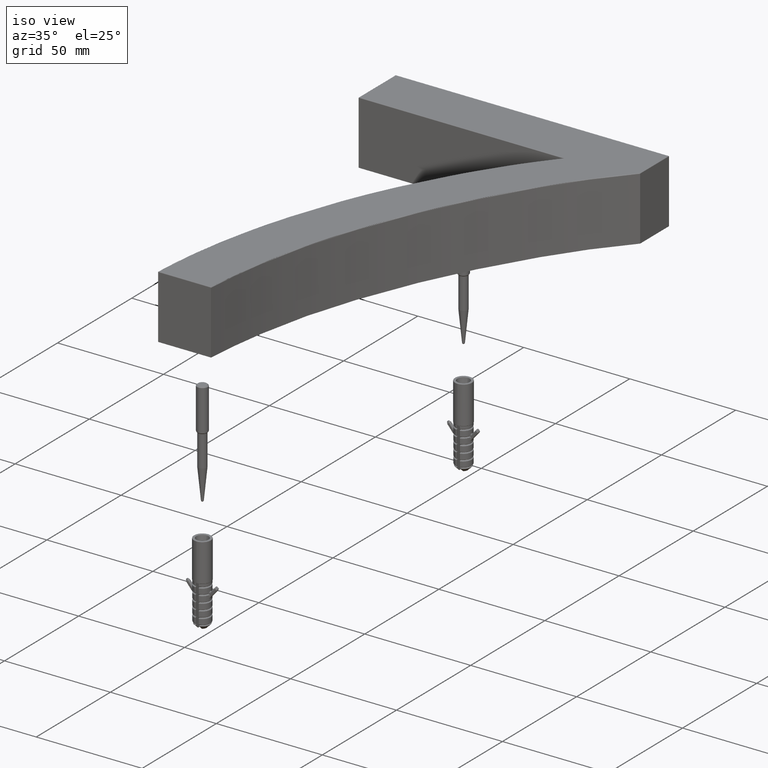
[diagram: clean part render]
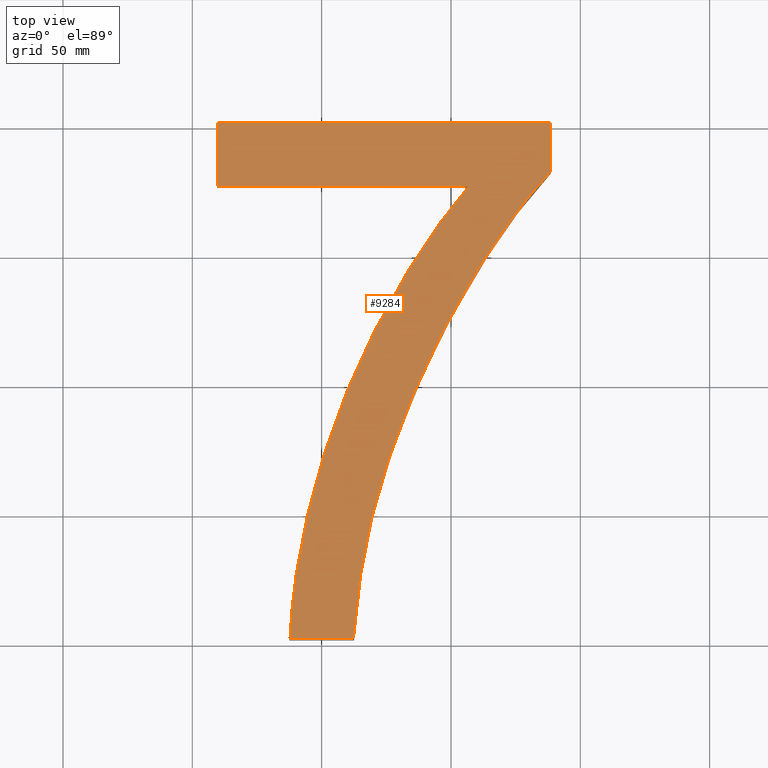
[diagram: tour spotlight — one face highlighted and labeled with its STEP entity id]
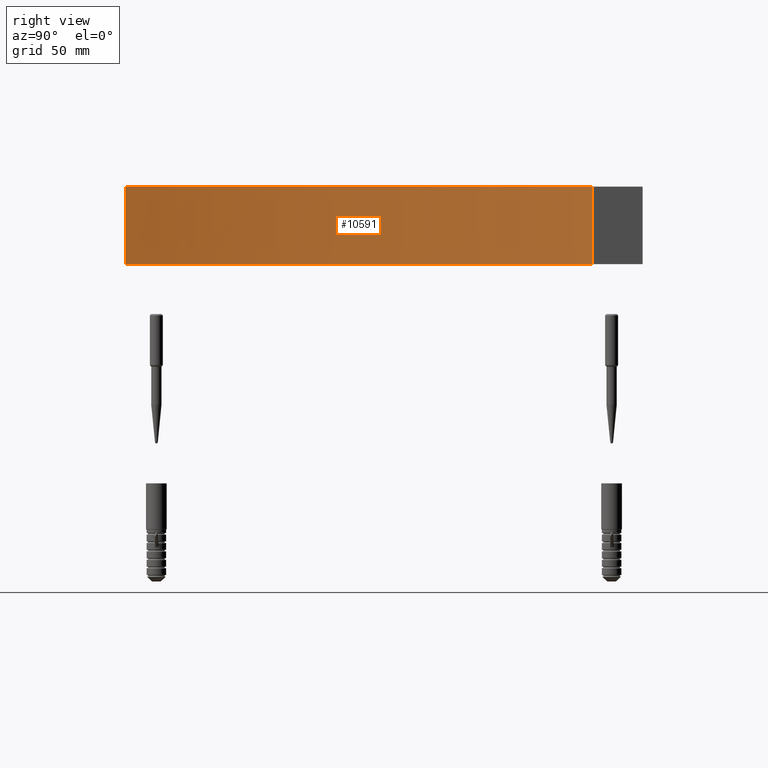
[diagram: tour spotlight — one face highlighted and labeled with its STEP entity id]
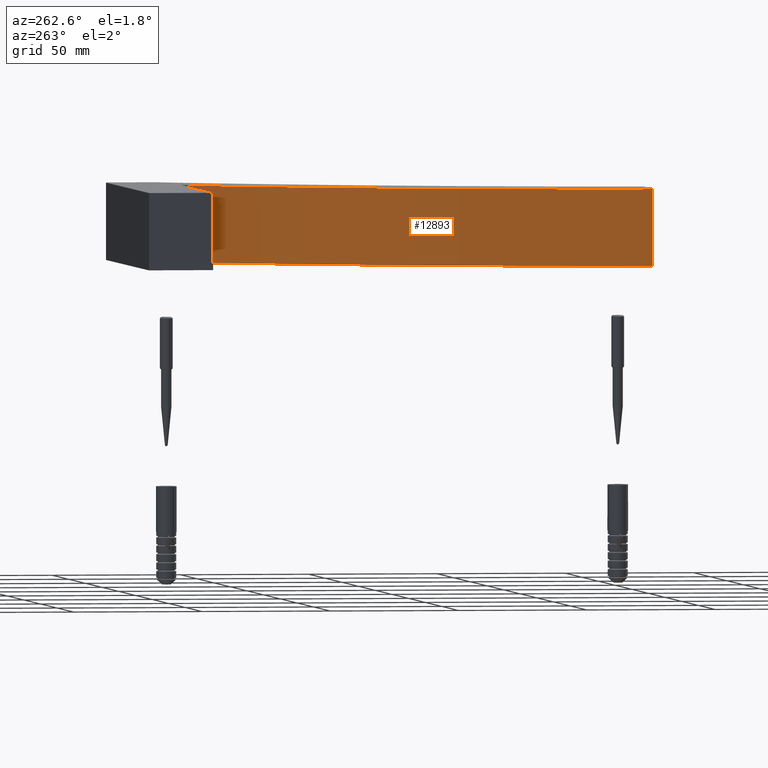
[diagram: tour spotlight — one face highlighted and labeled with its STEP entity id]
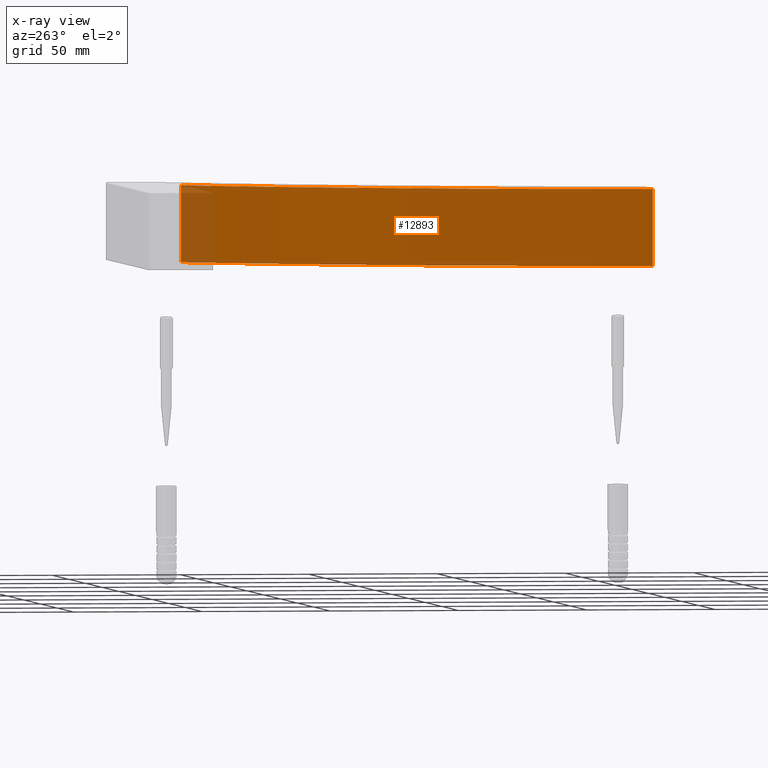
[diagram: x-ray of the same camera — body ghosted, this tour face saturated]
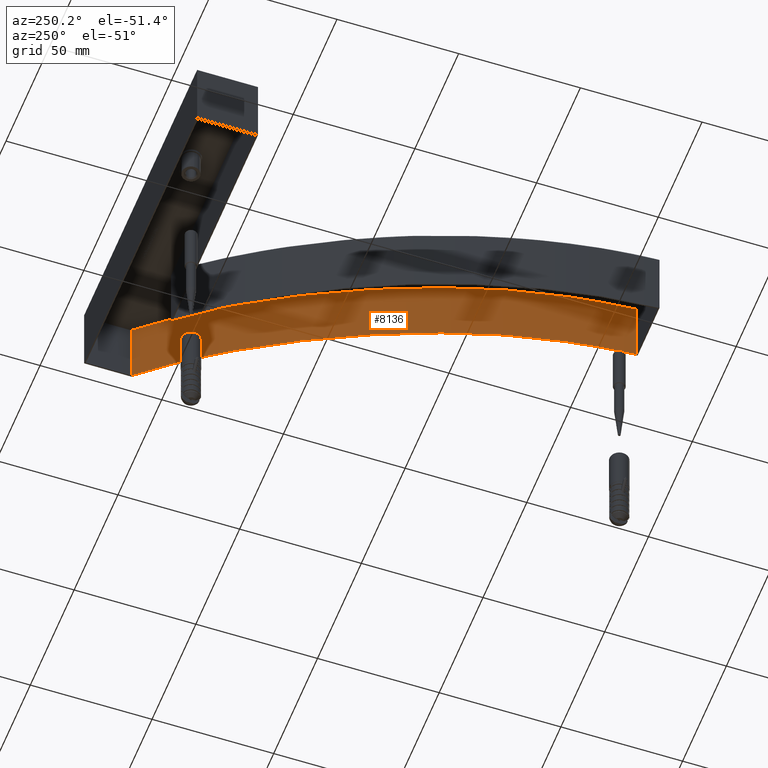
[diagram: tour spotlight — one face highlighted and labeled with its STEP entity id]
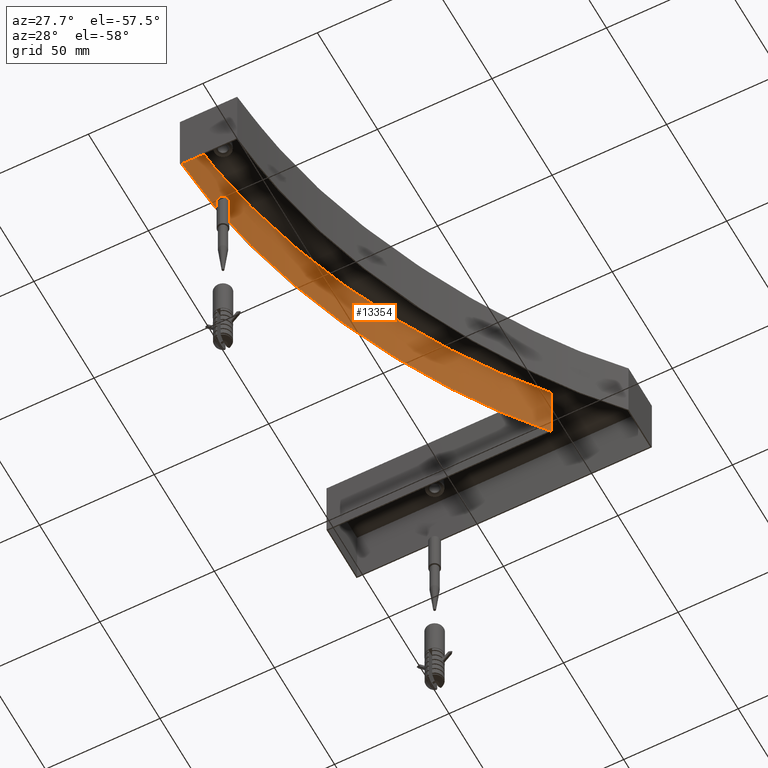
[diagram: tour spotlight — one face highlighted and labeled with its STEP entity id]
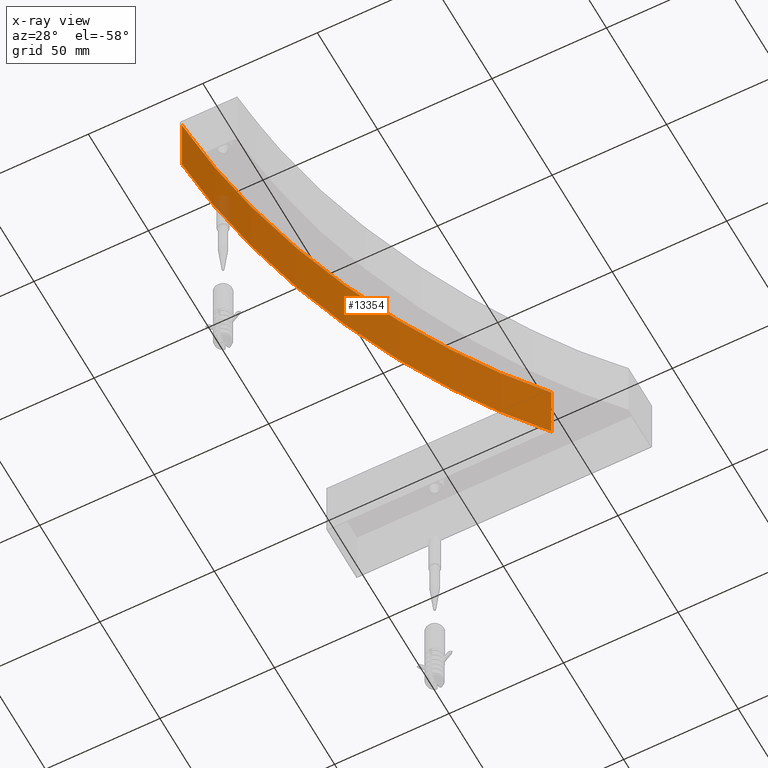
[diagram: x-ray of the same camera — body ghosted, this tour face saturated]
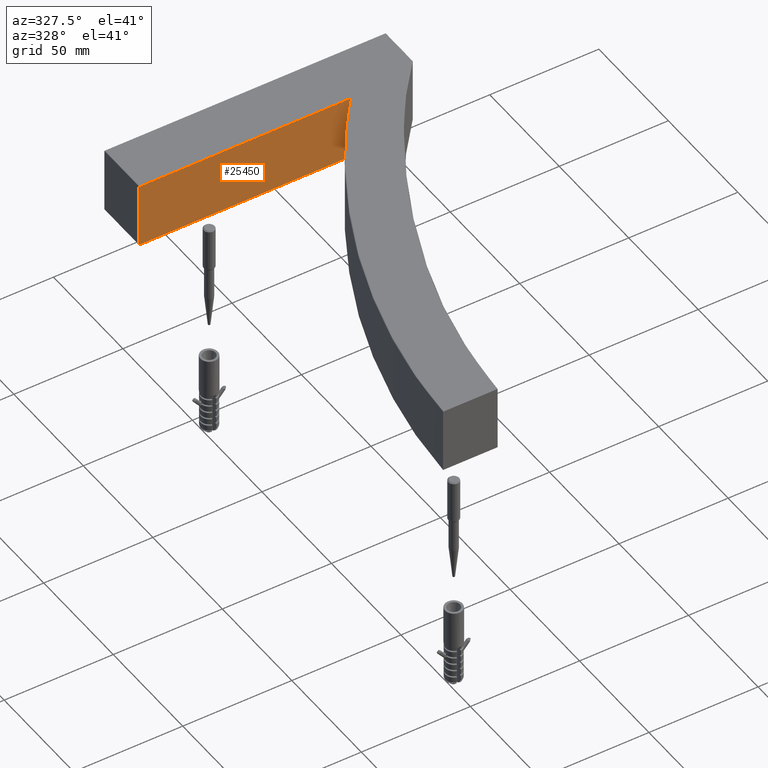
[diagram: tour spotlight — one face highlighted and labeled with its STEP entity id]
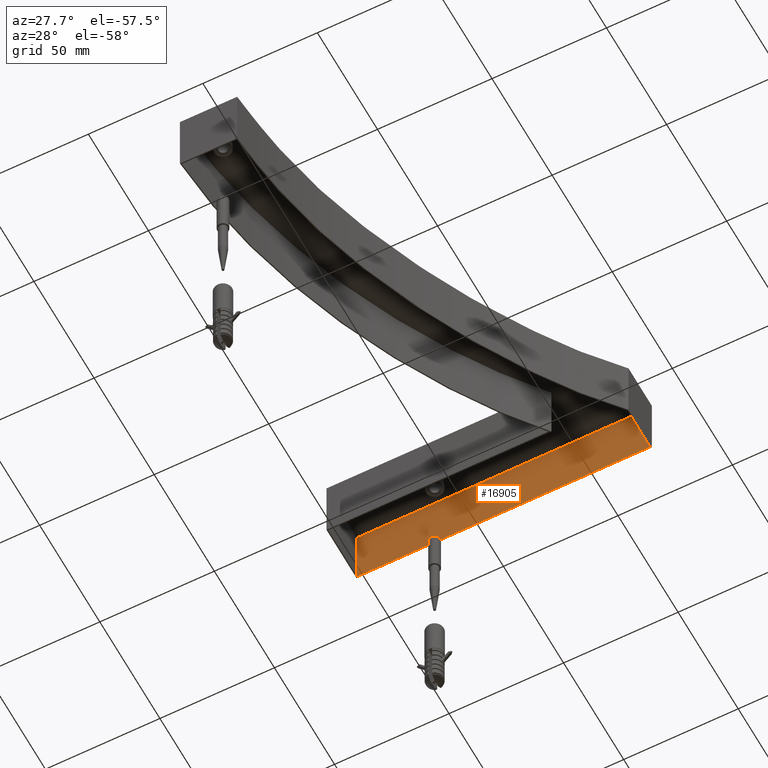
[diagram: tour spotlight — one face highlighted and labeled with its STEP entity id]
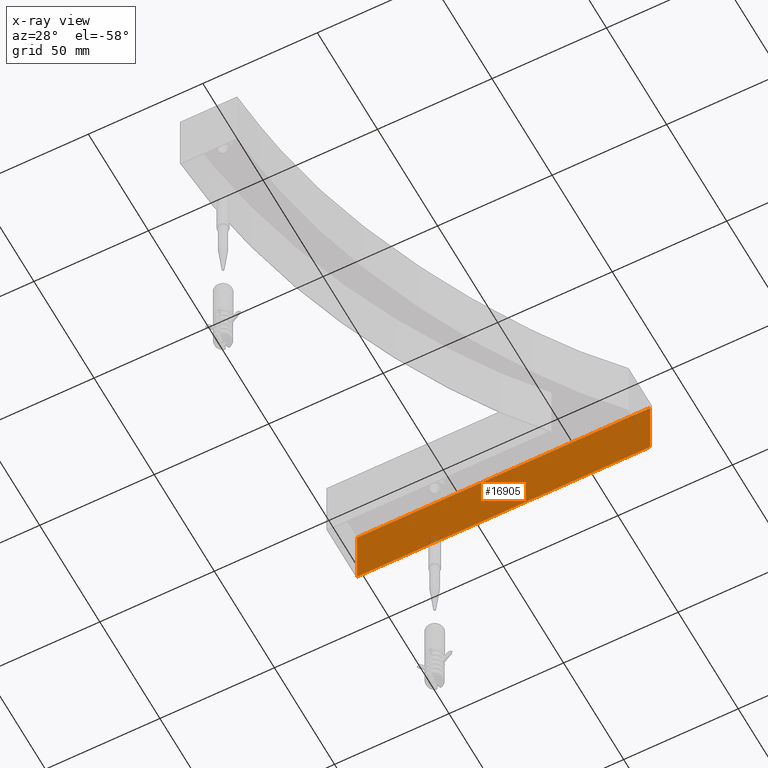
[diagram: x-ray of the same camera — body ghosted, this tour face saturated]
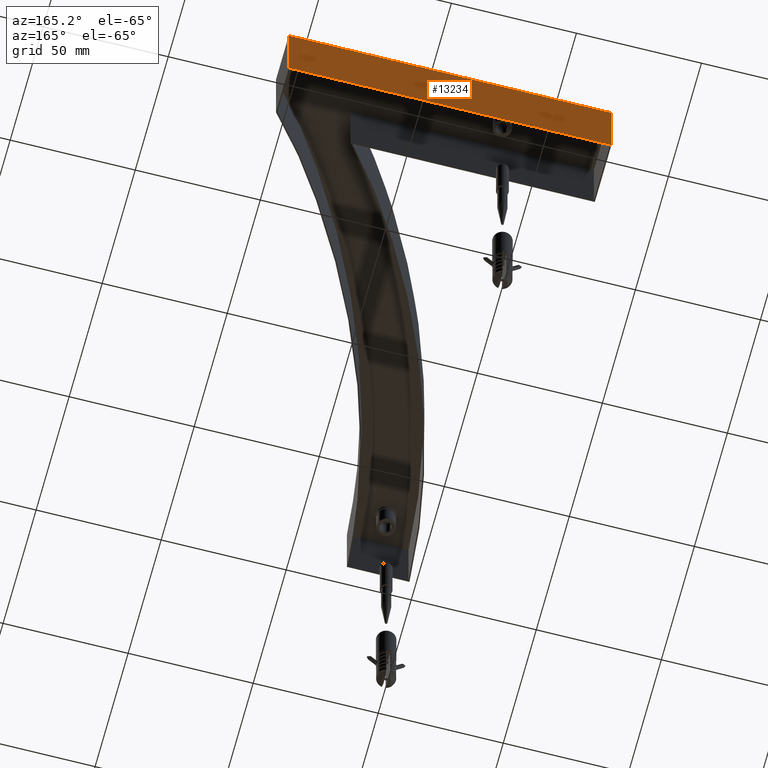
[diagram: tour spotlight — one face highlighted and labeled with its STEP entity id]
A machine part: a face-by-face anatomy tour. The part has 1117 B-rep faces; the first image is the clean iso view, then the 8 largest visible faces are spotlighted one at a time (largest first), each with its STEP entity span.

Face 1 — top view, entity #9284. In plain terms, the highlighted planar face has unit normal (0, 0, -1).
Definition (entity closure, byte-faithful):
#31 = CARTESIAN_POINT ( 'NONE',  ( 25.67903893588377400, 129.3058282778457100, 1.999999999999999600 ) ) ;
#389 = LINE ( 'NONE', #9671, #26893 ) ;
#1138 = CARTESIAN_POINT ( 'NONE',  ( 15.68697582404206300, 29.10304471464886700, 2.000000000000000400 ) ) ;
#1427 = EDGE_CURVE ( 'NONE', #1730, #26936, #389, .T. ) ;
#1730 = VERTEX_POINT ( 'NONE', #21469 ) ;
#2020 = CARTESIAN_POINT ( 'NONE',  ( -1.562183221660005800, 63.14000277501475000, 2.000000000000000000 ) ) ;
#2111 = CARTESIAN_POINT ( 'NONE',  ( 51.86726384678156900, 169.0683586130027400, 2.000000000000000000 ) ) ;
#2201 = CARTESIAN_POINT ( 'NONE',  ( 53.75885644564278500, 171.4062288601111800, 2.000000000000000000 ) ) ;
#2628 = CARTESIAN_POINT ( 'NONE',  ( 8.304680005035907100, 199.7499999999997400, 2.000000000000000000 ) ) ;
#2875 = CARTESIAN_POINT ( 'NONE',  ( 12.26755610381999900, 0.2500000000000002200, 2.000000000000000000 ) ) ;
#2968 = CARTESIAN_POINT ( 'NONE',  ( 28.52190864176143500, 77.12201658942888100, 2.000000000000000000 ) ) ;
#3062 = CARTESIAN_POINT ( 'NONE',  ( 54.73608350832336100, 133.4822641536795800, 2.000000000000000400 ) ) ;
#3106 = VERTEX_POINT ( 'NONE', #20939 ) ;
#3372 = EDGE_LOOP ( 'NONE', ( #10533, #6016, #21171, #16856, #23415, #18427, #4565 ) ) ;
#3393 = CARTESIAN_POINT ( 'NONE',  ( 12.26755610381999900, 0.2500000000000002200, 2.000000000000000000 ) ) ;
#3816 = CARTESIAN_POINT ( 'NONE',  ( -40.13153854441506500, 92.88315515790276300, 2.000000000000000000 ) ) ;
#4156 = CARTESIAN_POINT ( 'NONE',  ( -11.87117170688178900, 8.242805563781210800, 2.000000000000000000 ) ) ;
#4242 = CARTESIAN_POINT ( 'NONE',  ( -4.643664369976062500, 51.56447202655412800, 2.000000000000000000 ) ) ;
#4324 = EDGE_CURVE ( 'NONE', #20022, #1730, #12560, .T. ) ;
#4565 = ORIENTED_EDGE ( 'NONE', *, *, #18444, .T. ) ;
#4800 = CARTESIAN_POINT ( 'NONE',  ( 56.97818816922306700, 175.2499999999997200, 2.000000000000000000 ) ) ;
#5009 = CARTESIAN_POINT ( 'NONE',  ( 67.78906729093681300, 154.6523398344006400, 2.000000000000000000 ) ) ;
#5092 = CARTESIAN_POINT ( 'NONE',  ( 48.67859574942592400, 122.5973944493177200, 2.000000000000000000 ) ) ;
#5181 = CARTESIAN_POINT ( 'NONE',  ( 17.63709974289799100, 39.30806934404699100, 2.000000000000000400 ) ) ;
#5263 = CARTESIAN_POINT ( 'NONE',  ( 88.33252976351174400, 180.6503644855364400, 2.000000000000000000 ) ) ;
#5362 = CARTESIAN_POINT ( 'NONE',  ( 29.96540975456862200, 81.01084683060028600, 2.000000000000000400 ) ) ;
#6016 = ORIENTED_EDGE ( 'NONE', *, *, #4324, .T. ) ;
#6163 = CARTESIAN_POINT ( 'NONE',  ( 40.12890613988196300, 152.9784011692173100, 2.000000000000000000 ) ) ;
#6350 = CARTESIAN_POINT ( 'NONE',  ( -8.751538994808411700, 32.00049118244065500, 1.999999999999999600 ) ) ;
#6379 = DIRECTION ( 'NONE',  ( 0.0000000000000000000, -1.000000000000000000, 0.0000000000000000000 ) ) ;
#6908 = CARTESIAN_POINT ( 'NONE',  ( 54.39519200921211700, 172.1815811575459900, 2.000000000000000000 ) ) ;
#7368 = DIRECTION ( 'NONE',  ( 1.000000000000000000, 0.0000000000000000000, 0.0000000000000000000 ) ) ;
#7395 = CARTESIAN_POINT ( 'NONE',  ( 12.87488654092094900, 8.544254313294587200, 2.000000000000000400 ) ) ;
#7546 = PLANE ( 'NONE',  #21199 ) ;
#8282 = CARTESIAN_POINT ( 'NONE',  ( -6.448417851805022100, 43.77190479629805300, 2.000000000000000000 ) ) ;
#8499 = CARTESIAN_POINT ( 'NONE',  ( 88.33252976351174400, 199.7499999999997400, 2.000000000000000000 ) ) ;
#8551 = CARTESIAN_POINT ( 'NONE',  ( 11.81000848521544800, 100.7226205611690800, 2.000000000000000000 ) ) ;
#9011 = CARTESIAN_POINT ( 'NONE',  ( 12.60366295925993900, 102.5513566216701800, 2.000000000000000400 ) ) ;
#9284 = ADVANCED_FACE ( 'NONE', ( #19686 ), #7546, .F. ) ;
#9303 = EDGE_CURVE ( 'NONE', #21968, #17271, #12474, .T. ) ;
#9307 = CARTESIAN_POINT ( 'NONE',  ( 16.40918520913426800, 33.19296078079856500, 2.000000000000000000 ) ) ;
#9387 = CARTESIAN_POINT ( 'NONE',  ( 18.07040095803173300, 41.34236131220545500, 2.000000000000000000 ) ) ;
#9641 = VECTOR ( 'NONE', #6379, 1000.000000000000000 ) ;
#9671 = CARTESIAN_POINT ( 'NONE',  ( 8.304680005035907100, 175.2499999999997200, 2.000000000000000000 ) ) ;
#10377 = CARTESIAN_POINT ( 'NONE',  ( 46.98875072764990800, 162.7382457612724800, 2.000000000000000400 ) ) ;
#10467 = CARTESIAN_POINT ( 'NONE',  ( 15.03346022951677900, 108.0093394135533500, 2.000000000000000000 ) ) ;
#10533 = ORIENTED_EDGE ( 'NONE', *, *, #17635, .T. ) ;
#10863 = CARTESIAN_POINT ( 'NONE',  ( 88.33252976351174400, 92.88315515790276300, 2.000000000000000000 ) ) ;
#11483 = CARTESIAN_POINT ( 'NONE',  ( 32.98456760051662700, 88.74791460121306800, 2.000000000000000900 ) ) ;
#11613 = B_SPLINE_CURVE_WITH_KNOTS ( 'NONE', 3,
 ( #4800, #25070, #21087, #6908, #2201, #2111, #12552, #10377, #18687, #6163, #22996, #20810, #18871, #31, #16637, #21552, #10467, #9011, #8551, #16732, #23650, #14452, #20983, #23177, #2020, #14544, #4242, #8282, #24983, #6350, #12470, #27109, #4156, #24893 ),
 .UNSPECIFIED., .F., .F.,
 ( 4, 2, 2, 2, 2, 2, 2, 2, 2, 2, 2, 2, 2, 2, 2, 2, 4 ),
 ( 0.0000000000000000000, 0.003008125092872090600, 0.006016250185744181200, 0.01203250037148835000, 0.02406500074297662400, 0.03609750111446489300, 0.04813000148595317200, 0.07219500222892971700, 0.08422750260041798900, 0.09024375278616211800, 0.09626000297190623300, 0.1203250037148828200, 0.1323575040863711500, 0.1443900044578594600, 0.1564225048293478000, 0.1684550052008361700, 0.1925200059438128300 ),
 .UNSPECIFIED. ) ;
#11860 = DIRECTION ( 'NONE',  ( 1.000000000000000000, -0.0000000000000000000, 0.0000000000000000000 ) ) ;
#12414 = EDGE_CURVE ( 'NONE', #17271, #3106, #20039, .T. ) ;
#12470 = CARTESIAN_POINT ( 'NONE',  ( -9.407226734852020700, 28.05370331875983300, 2.000000000000000000 ) ) ;
#12474 = LINE ( 'NONE', #13709, #15724 ) ;
#12552 = CARTESIAN_POINT ( 'NONE',  ( 50.63068132304217500, 167.4956297535878200, 1.999999999999999600 ) ) ;
#12560 = LINE ( 'NONE', #3816, #9641 ) ;
#13141 = VECTOR ( 'NONE', #21596, 1000.000000000000000 ) ;
#13445 = DIRECTION ( 'NONE',  ( -1.000000000000000000, 0.0000000000000000000, -0.0000000000000000000 ) ) ;
#13470 = CARTESIAN_POINT ( 'NONE',  ( 57.89423073749614400, 138.8493934281233400, 1.999999999999999100 ) ) ;
#13561 = CARTESIAN_POINT ( 'NONE',  ( 19.46605437871276900, 47.41199525714596800, 2.000000000000000000 ) ) ;
#13709 = CARTESIAN_POINT ( 'NONE',  ( 8.304680005035907100, 0.2500000000000002200, 2.000000000000000000 ) ) ;
#14452 = CARTESIAN_POINT ( 'NONE',  ( 5.790035983701776500, 85.91162845132322400, 2.000000000000000000 ) ) ;
#14544 = CARTESIAN_POINT ( 'NONE',  ( -3.663876341420857900, 55.43881108466072000, 2.000000000000000000 ) ) ;
#15346 = CARTESIAN_POINT ( 'NONE',  ( 56.97818816922306700, 175.2499999999997200, 2.000000000000000000 ) ) ;
#15454 = CARTESIAN_POINT ( 'NONE',  ( 8.304680005035907100, 92.88315515790276300, 2.000000000000000000 ) ) ;
#15724 = VECTOR ( 'NONE', #7368, 1000.000000000000000 ) ;
#15745 = CARTESIAN_POINT ( 'NONE',  ( 50.64894918304200600, 126.2489101130233600, 1.999999999999999600 ) ) ;
#16637 = CARTESIAN_POINT ( 'NONE',  ( 21.95257959103242500, 122.3098419000259000, 1.999999999999999600 ) ) ;
#16732 = CARTESIAN_POINT ( 'NONE',  ( 10.25667408150722400, 97.04551155327047200, 2.000000000000000000 ) ) ;
#16794 = DIRECTION ( 'NONE',  ( 0.0000000000000000000, 1.000000000000000000, 0.0000000000000000000 ) ) ;
#16856 = ORIENTED_EDGE ( 'NONE', *, *, #19941, .T. ) ;
#17271 = VERTEX_POINT ( 'NONE', #3393 ) ;
#17547 = CARTESIAN_POINT ( 'NONE',  ( 18.98476025604559000, 45.39372191794183200, 2.000000000000000000 ) ) ;
#17627 = CARTESIAN_POINT ( 'NONE',  ( 42.97784002245608500, 111.5415203713470300, 1.999999999999999600 ) ) ;
#17635 = EDGE_CURVE ( 'NONE', #19708, #20022, #22988, .T. ) ;
#17719 = CARTESIAN_POINT ( 'NONE',  ( 82.68118241308140200, 174.5168026078038100, 1.999999999999999600 ) ) ;
#17814 = CARTESIAN_POINT ( 'NONE',  ( 34.55734783876270200, 92.59433781844479900, 2.000000000000000000 ) ) ;
#17907 = CARTESIAN_POINT ( 'NONE',  ( 21.99694215225232300, 57.46514617463494500, 2.000000000000000000 ) ) ;
#18010 = CARTESIAN_POINT ( 'NONE',  ( -12.23839444473132900, 0.2500000000000002800, 2.000000000000000000 ) ) ;
#18427 = ORIENTED_EDGE ( 'NONE', *, *, #12414, .T. ) ;
#18444 = EDGE_CURVE ( 'NONE', #3106, #19708, #21060, .T. ) ;
#18687 = CARTESIAN_POINT ( 'NONE',  ( 44.65113736358084400, 159.5144407643775300, 2.000000000000000000 ) ) ;
#18871 = CARTESIAN_POINT ( 'NONE',  ( 31.64975249645644300, 139.5795801418108200, 2.000000000000000400 ) ) ;
#19515 = CARTESIAN_POINT ( 'NONE',  ( -40.13153854441506500, 199.7499999999997400, 2.000000000000000000 ) ) ;
#19686 = FACE_OUTER_BOUND ( 'NONE', #3372, .T. ) ;
#19708 = VERTEX_POINT ( 'NONE', #8499 ) ;
#19727 = VECTOR ( 'NONE', #16794, 1000.000000000000000 ) ;
#19941 = EDGE_CURVE ( 'NONE', #26936, #21968, #11613, .T. ) ;
#19992 = CARTESIAN_POINT ( 'NONE',  ( 53.70182318115803400, 131.6792822581837500, 2.000000000000000400 ) ) ;
#20022 = VERTEX_POINT ( 'NONE', #19515 ) ;
#20039 = B_SPLINE_CURVE_WITH_KNOTS ( 'NONE', 3,
 ( #2875, #7395, #24210, #1138, #9307, #5181, #9387, #17547, #13561, #17907, #21919, #2968, #5362, #11483, #17814, #26219, #17627, #5092, #15745, #19992, #3062, #21751, #13470, #25947, #5009, #24042, #17719, #5263 ),
 .UNSPECIFIED., .F., .F.,
 ( 4, 2, 2, 2, 2, 2, 2, 2, 2, 2, 2, 2, 2, 4 ),
 ( 0.0000000000000000000, 0.02490026617828055100, 0.03735039926742082800, 0.04357546581199097500, 0.04980053235656112200, 0.07470079853484165600, 0.08715093162398190900, 0.09960106471312217500, 0.1245013308914027400, 0.1369514639805430600, 0.1431765305251131700, 0.1494015970696833100, 0.1743018632479638200, 0.1992021294262443500 ),
 .UNSPECIFIED. ) ;
#20810 = CARTESIAN_POINT ( 'NONE',  ( 33.70359290630148800, 142.9674025672810600, 2.000000000000000900 ) ) ;
#20939 = CARTESIAN_POINT ( 'NONE',  ( 88.33252976351174400, 180.6503644855364400, 2.000000000000000000 ) ) ;
#20983 = CARTESIAN_POINT ( 'NONE',  ( 3.129954906876384800, 78.38744897674851600, 1.999999999999999600 ) ) ;
#21060 = LINE ( 'NONE', #10863, #19727 ) ;
#21087 = CARTESIAN_POINT ( 'NONE',  ( 55.67856856915989300, 173.7225697579268300, 1.999999999999999600 ) ) ;
#21171 = ORIENTED_EDGE ( 'NONE', *, *, #1427, .T. ) ;
#21199 = AXIS2_PLACEMENT_3D ( 'NONE', #15454, #22160, #13445 ) ;
#21469 = CARTESIAN_POINT ( 'NONE',  ( -40.13153854441506500, 175.2499999999997200, 2.000000000000000000 ) ) ;
#21552 = CARTESIAN_POINT ( 'NONE',  ( 16.71840897018699200, 111.6103768833056200, 2.000000000000000000 ) ) ;
#21596 = DIRECTION ( 'NONE',  ( -1.000000000000000000, 0.0000000000000000000, 0.0000000000000000000 ) ) ;
#21751 = CARTESIAN_POINT ( 'NONE',  ( 56.83212539296531000, 137.0670160840059000, 2.000000000000000400 ) ) ;
#21919 = CARTESIAN_POINT ( 'NONE',  ( 24.42244875647867600, 65.38455892355798900, 2.000000000000000000 ) ) ;
#21968 = VERTEX_POINT ( 'NONE', #18010 ) ;
#22160 = DIRECTION ( 'NONE',  ( 0.0000000000000000000, 0.0000000000000000000, -1.000000000000000000 ) ) ;
#22988 = LINE ( 'NONE', #2628, #13141 ) ;
#22996 = CARTESIAN_POINT ( 'NONE',  ( 37.94385682827531500, 149.6664159451180500, 2.000000000000000000 ) ) ;
#23177 = CARTESIAN_POINT ( 'NONE',  ( -0.4409341953247304400, 66.96828063065444800, 2.000000000000000400 ) ) ;
#23415 = ORIENTED_EDGE ( 'NONE', *, *, #9303, .T. ) ;
#23650 = CARTESIAN_POINT ( 'NONE',  ( 9.496561483424455800, 95.19593912915485100, 2.000000000000000400 ) ) ;
#24042 = CARTESIAN_POINT ( 'NONE',  ( 77.49400283202192000, 168.0537246058958100, 2.000000000000000400 ) ) ;
#24210 = CARTESIAN_POINT ( 'NONE',  ( 13.78690465537352900, 16.79686065804503400, 2.000000000000000000 ) ) ;
#24893 = CARTESIAN_POINT ( 'NONE',  ( -12.23839444473132900, 0.2500000000000002800, 2.000000000000000000 ) ) ;
#24983 = CARTESIAN_POINT ( 'NONE',  ( -7.272063272947593600, 39.85953175137274900, 1.999999999999999600 ) ) ;
#25070 = CARTESIAN_POINT ( 'NONE',  ( 56.32729695340308500, 174.4871875562105600, 2.000000000000000000 ) ) ;
#25947 = CARTESIAN_POINT ( 'NONE',  ( 63.27184020014294000, 147.7136576166439600, 2.000000000000000000 ) ) ;
#26219 = CARTESIAN_POINT ( 'NONE',  ( 39.45911610299142300, 104.0351729580763900, 2.000000000000000000 ) ) ;
#26893 = VECTOR ( 'NONE', #11860, 1000.000000000000000 ) ;
#26936 = VERTEX_POINT ( 'NONE', #15346 ) ;
#27109 = CARTESIAN_POINT ( 'NONE',  ( -11.10196289234224500, 16.19111482127999200, 1.999999999999999600 ) ) ;

Face 2 — right view, entity #10591. In plain terms, the highlighted face is a freeform B-spline surface patch.
Definition (entity closure, byte-faithful):
#823 = CARTESIAN_POINT ( 'NONE',  ( 24.53011486798889600, 64.89918678285114600, -28.00000000000000000 ) ) ;
#989 = CARTESIAN_POINT ( 'NONE',  ( 14.01418494834827500, 16.59257089496048800, -28.00000000000000000 ) ) ;
#1151 = CARTESIAN_POINT ( 'NONE',  ( 15.90817248373877900, 28.91263659081614500, 1.750000000000000200 ) ) ;
#1295 = VERTEX_POINT ( 'NONE', #4930 ) ;
#1524 = CARTESIAN_POINT ( 'NONE',  ( 12.49999999999999600, -1.696960613855621800E-014, 1.750000000000000000 ) ) ;
#1827 = CARTESIAN_POINT ( 'NONE',  ( 50.68317872903205800, 125.9542717769489600, -27.99999999999998900 ) ) ;
#2632 = LINE ( 'NONE', #9105, #10182 ) ;
#2905 = CARTESIAN_POINT ( 'NONE',  ( 16.52653688294195800, 32.93931757195542100, -28.00000000000000400 ) ) ;
#3435 = CARTESIAN_POINT ( 'NONE',  ( 24.63418473497227300, 65.22670288792412000, 1.750000000000000400 ) ) ;
#3598 = CARTESIAN_POINT ( 'NONE',  ( 88.58252976351174400, 180.5527123848540300, -28.00000000000000400 ) ) ;
#3708 = CARTESIAN_POINT ( 'NONE',  ( 12.49999999999999600, -1.696960613855621800E-014, 1.750000000000000000 ) ) ;
#4930 = CARTESIAN_POINT ( 'NONE',  ( 12.49999999999999600, -1.696960613855621800E-014, -27.99999999999999600 ) ) ;
#5041 = CARTESIAN_POINT ( 'NONE',  ( 28.60553834537628500, 76.61961756578040200, -27.99999999999999600 ) ) ;
#5127 = CARTESIAN_POINT ( 'NONE',  ( 18.12893686658092900, 41.02742436764889100, -28.00000000000000000 ) ) ;
#5323 = CARTESIAN_POINT ( 'NONE',  ( 67.95679162537570100, 154.4563836009214100, -27.99999999999998900 ) ) ;
#5380 = CARTESIAN_POINT ( 'NONE',  ( 43.19293456752926400, 111.4125453149495400, 1.750000000000000200 ) ) ;
#5736 = CARTESIAN_POINT ( 'NONE',  ( 54.95755935925382100, 133.3658923502391600, 1.749999999999999800 ) ) ;
#7232 = CARTESIAN_POINT ( 'NONE',  ( 30.04271415626192300, 80.50704560883050900, -28.00000000000000400 ) ) ;
#7764 = CARTESIAN_POINT ( 'NONE',  ( 50.86798557546339300, 126.1284885721610500, 1.750000000000000000 ) ) ;
#7849 = CARTESIAN_POINT ( 'NONE',  ( 34.76959060026351300, 92.45367204701966600, 1.749999999999999300 ) ) ;
#8349 = CARTESIAN_POINT ( 'NONE',  ( 88.58252976351174400, 180.5527123848540300, 2.000000000000000000 ) ) ;
#8424 = CARTESIAN_POINT ( 'NONE',  ( 13.71954417928530400, 16.81438895704235000, -28.00000000000000400 ) ) ;
#9105 = CARTESIAN_POINT ( 'NONE',  ( 12.49999999999999600, -1.696960613855621800E-014, 2.000000000000000000 ) ) ;
#9157 = B_SPLINE_SURFACE_WITH_KNOTS ( 'NONE', 3, 1, ( 
 ( #10603, #12604 ),
 ( #18831, #8424 ),
 ( #10513, #20666 ),
 ( #23159, #20220 ),
 ( #25681, #22637 ),
 ( #24395, #10356 ),
 ( #11262, #9862 ),
 ( #23586, #18330 ) ),
 .UNSPECIFIED., .F., .F., .F.,
 ( 4, 1, 1, 1, 1, 4 ),
 ( 2, 2 ),
 ( 0.0000000000000000000, 0.2541433320984686200, 0.4517956720952003300, 0.6224287848500443800, 0.7495309835457959500, 1.000000000000000000 ),
 ( 0.0000000000000000000, 1.000000000000000000 ),
 .UNSPECIFIED. ) ;
#9334 = CARTESIAN_POINT ( 'NONE',  ( 13.10445435167477300, 8.333876499490738600, -27.99999999999999600 ) ) ;
#9834 = CARTESIAN_POINT ( 'NONE',  ( 30.17676152200511200, 80.86295349767095800, 1.749999999999999800 ) ) ;
#9862 = CARTESIAN_POINT ( 'NONE',  ( 77.27009997740279300, 168.2880839827036800, -28.00000000000000400 ) ) ;
#9931 = CARTESIAN_POINT ( 'NONE',  ( 22.20985978755576400, 57.30200272919160700, 1.749999999999999800 ) ) ;
#10182 = VECTOR ( 'NONE', #15356, 1000.000000000000000 ) ;
#10298 = CARTESIAN_POINT ( 'NONE',  ( 14.64292838083952100, 20.68675693518091000, 1.750000000000000400 ) ) ;
#10356 = CARTESIAN_POINT ( 'NONE',  ( 62.89997198325109200, 147.6592864190728300, -28.00000000000000400 ) ) ;
#10513 = CARTESIAN_POINT ( 'NONE',  ( 18.13744530750475200, 46.65751350930074200, 1.750000000000000000 ) ) ;
#10591 = ADVANCED_FACE ( 'NONE', ( #16660 ), #9157, .F. ) ;
#10603 = CARTESIAN_POINT ( 'NONE',  ( 12.49999999999999600, -1.696960613855621800E-014, 1.750000000000000000 ) ) ;
#11140 = EDGE_CURVE ( 'NONE', #26210, #12471, #18022, .T. ) ;
#11262 = CARTESIAN_POINT ( 'NONE',  ( 77.27009997740279300, 168.2880839827036800, 1.750000000000000000 ) ) ;
#11515 = CARTESIAN_POINT ( 'NONE',  ( 34.62468728569309200, 92.10468797638647200, -28.00000000000000000 ) ) ;
#11771 = CARTESIAN_POINT ( 'NONE',  ( 53.92266766014416400, 131.5619095187320200, 1.750000000000000000 ) ) ;
#12039 = CARTESIAN_POINT ( 'NONE',  ( 18.26450969276783100, 41.17296712904241200, 1.750000000000000000 ) ) ;
#12471 = VERTEX_POINT ( 'NONE', #3598 ) ;
#12604 = CARTESIAN_POINT ( 'NONE',  ( 12.49999999999999600, -1.696960613855621800E-014, -28.00000000000000400 ) ) ;
#13318 = CARTESIAN_POINT ( 'NONE',  ( 22.12779675118518000, 57.00808034103769700, -27.99999999999998900 ) ) ;
#13842 = CARTESIAN_POINT ( 'NONE',  ( 33.19638750141131600, 88.60479831184315500, 1.749999999999999800 ) ) ;
#14181 = ORIENTED_EDGE ( 'NONE', *, *, #20035, .T. ) ;
#14252 = CARTESIAN_POINT ( 'NONE',  ( 54.77128010824665000, 133.2125418451328800, -27.99999999999998600 ) ) ;
#14343 = CARTESIAN_POINT ( 'NONE',  ( 39.54008500327463300, 103.6117255459946200, -27.99999999999999300 ) ) ;
#14679 = EDGE_LOOP ( 'NONE', ( #18089, #20523, #14181, #23392 ) ) ;
#15356 = DIRECTION ( 'NONE',  ( -0.0000000000000000000, -0.0000000000000000000, -1.000000000000000000 ) ) ;
#15675 = CARTESIAN_POINT ( 'NONE',  ( 88.58252976351174400, 180.5527123848540300, 1.750000000000000000 ) ) ;
#15759 = CARTESIAN_POINT ( 'NONE',  ( 88.58252976351174400, 180.5527123848540300, 1.750000000000000000 ) ) ;
#15941 = CARTESIAN_POINT ( 'NONE',  ( 58.11767918986950600, 138.7359270765908500, 1.749999999999999800 ) ) ;
#16039 = CARTESIAN_POINT ( 'NONE',  ( 77.73236836093066400, 167.9535645084641000, 1.750000000000000200 ) ) ;
#16128 = CARTESIAN_POINT ( 'NONE',  ( 63.49875216753675000, 147.6048751622070100, 1.749999999999999800 ) ) ;
#16440 = CARTESIAN_POINT ( 'NONE',  ( 43.06760116238725500, 111.1548549747110000, -28.00000000000000000 ) ) ;
#16575 = B_SPLINE_CURVE_WITH_KNOTS ( 'NONE', 3,
 ( #22069, #26810, #22535, #5323, #26724, #14252, #1827, #16440, #14343, #11515, #23982, #7232, #5041, #823, #13318, #5127, #2905, #989, #9334, #25982 ),
 .UNSPECIFIED., .F., .F.,
 ( 4, 2, 2, 2, 2, 2, 2, 2, 2, 4 ),
 ( 0.0000000000000000000, 0.02493031409060433200, 0.04986062818120866300, 0.07479094227181298800, 0.09972125636241736800, 0.1121864134077195400, 0.1246515704530216900, 0.1495818845436260600, 0.1745121986342304000, 0.1994425127248347400 ),
 .UNSPECIFIED. ) ;
#16660 = FACE_OUTER_BOUND ( 'NONE', #14679, .T. ) ;
#18022 = LINE ( 'NONE', #8349, #22908 ) ;
#18089 = ORIENTED_EDGE ( 'NONE', *, *, #11140, .F. ) ;
#18330 = CARTESIAN_POINT ( 'NONE',  ( 88.58252976351174400, 180.5527123848540300, -28.00000000000000400 ) ) ;
#18831 = CARTESIAN_POINT ( 'NONE',  ( 13.71954417928530400, 16.81438895704235000, 1.750000000000000000 ) ) ;
#19120 = B_SPLINE_CURVE_WITH_KNOTS ( 'NONE', 3,
 ( #15759, #26504, #16039, #20102, #16128, #15941, #20271, #5736, #11771, #7764, #22389, #5380, #20367, #7849, #13842, #9834, #22477, #3435, #9931, #24563, #12039, #26675, #1151, #10298, #22574, #26845, #20629, #3708 ),
 .UNSPECIFIED., .F., .F.,
 ( 4, 2, 2, 2, 2, 2, 2, 2, 2, 2, 2, 2, 2, 4 ),
 ( 0.0000000000000000000, 0.02483210376158277700, 0.04966420752316555400, 0.05587223346356126600, 0.06208025940395697800, 0.07449631128474834600, 0.09932841504633112300, 0.1117444669271224900, 0.1241605188079138700, 0.1489926225694966400, 0.1614086744502880000, 0.1738247263310794000, 0.1862407782118707700, 0.1986568300926621600 ),
 .UNSPECIFIED. ) ;
#19450 = VERTEX_POINT ( 'NONE', #1524 ) ;
#20035 = EDGE_CURVE ( 'NONE', #19450, #1295, #2632, .T. ) ;
#20102 = CARTESIAN_POINT ( 'NONE',  ( 68.01918704567296500, 154.5469306953430900, 1.750000000000000000 ) ) ;
#20220 = CARTESIAN_POINT ( 'NONE',  ( 31.51844326945769100, 85.88949893158935800, -28.00000000000000400 ) ) ;
#20271 = CARTESIAN_POINT ( 'NONE',  ( 57.05490172847118700, 136.9525943751471600, 1.749999999999999800 ) ) ;
#20367 = CARTESIAN_POINT ( 'NONE',  ( 39.67282943414534900, 103.9016373381029900, 1.750000000000000700 ) ) ;
#20523 = ORIENTED_EDGE ( 'NONE', *, *, #25018, .T. ) ;
#20629 = CARTESIAN_POINT ( 'NONE',  ( 12.80105762710556600, 4.150813169887631400, 1.750000000000000200 ) ) ;
#20666 = CARTESIAN_POINT ( 'NONE',  ( 18.13744530750475200, 46.65751350930074200, -28.00000000000000400 ) ) ;
#21322 = EDGE_CURVE ( 'NONE', #12471, #1295, #16575, .T. ) ;
#22069 = CARTESIAN_POINT ( 'NONE',  ( 88.58252976351174400, 180.5527123848540300, -28.00000000000000400 ) ) ;
#22389 = CARTESIAN_POINT ( 'NONE',  ( 48.89654362991222300, 122.4748841266647300, 1.750000000000000000 ) ) ;
#22477 = CARTESIAN_POINT ( 'NONE',  ( 28.73319579366014100, 76.97168228359336700, 1.750000000000000400 ) ) ;
#22535 = CARTESIAN_POINT ( 'NONE',  ( 77.70389731132998200, 167.9186519487402900, -28.00000000000000000 ) ) ;
#22574 = CARTESIAN_POINT ( 'NONE',  ( 14.09952380937273700, 16.56060239419902300, 1.750000000000000200 ) ) ;
#22637 = CARTESIAN_POINT ( 'NONE',  ( 45.03343421413713100, 115.9187286005819300, -28.00000000000000400 ) ) ;
#22908 = VECTOR ( 'NONE', #22969, 1000.000000000000000 ) ;
#22969 = DIRECTION ( 'NONE',  ( -0.0000000000000000000, -0.0000000000000000000, -1.000000000000000000 ) ) ;
#23159 = CARTESIAN_POINT ( 'NONE',  ( 31.51844326945769100, 85.88949893158935800, 1.750000000000000000 ) ) ;
#23392 = ORIENTED_EDGE ( 'NONE', *, *, #21322, .F. ) ;
#23586 = CARTESIAN_POINT ( 'NONE',  ( 88.58252976351174400, 180.5527123848540300, 1.750000000000000000 ) ) ;
#23982 = CARTESIAN_POINT ( 'NONE',  ( 33.05303298898091000, 88.24841628240888300, -28.00000000000000400 ) ) ;
#24395 = CARTESIAN_POINT ( 'NONE',  ( 62.89997198325109200, 147.6592864190728300, 1.750000000000000000 ) ) ;
#24563 = CARTESIAN_POINT ( 'NONE',  ( 19.17641012668941900, 45.22972069825308200, 1.749999999999999600 ) ) ;
#25018 = EDGE_CURVE ( 'NONE', #26210, #19450, #19120, .T. ) ;
#25681 = CARTESIAN_POINT ( 'NONE',  ( 45.03343421413713100, 115.9187286005819300, 1.750000000000000000 ) ) ;
#25982 = CARTESIAN_POINT ( 'NONE',  ( 12.49999999999999600, -1.696960613855621800E-014, -27.99999999999999600 ) ) ;
#26210 = VERTEX_POINT ( 'NONE', #15675 ) ;
#26504 = CARTESIAN_POINT ( 'NONE',  ( 82.92458296416627700, 174.4185204981279800, 1.750000000000000000 ) ) ;
#26675 = CARTESIAN_POINT ( 'NONE',  ( 16.62978640599326900, 33.01115445406568200, 1.750000000000000400 ) ) ;
#26724 = CARTESIAN_POINT ( 'NONE',  ( 63.41828911875299500, 147.4800132137199600, -27.99999999999998900 ) ) ;
#26810 = CARTESIAN_POINT ( 'NONE',  ( 82.91202083945134400, 174.4049009845059000, -28.00000000000000400 ) ) ;
#26845 = CARTESIAN_POINT ( 'NONE',  ( 13.17869992081849200, 8.293363214960086400, 1.750000000000000400 ) ) ;

Face 3 — auxiliary view, entity #12893. An x-ray twin of the same camera follows (body ghosted, this face saturated) — the face is partly hidden behind the body. In plain terms, the highlighted face is a freeform B-spline surface patch.
Definition (entity closure, byte-faithful):
#60 = CARTESIAN_POINT ( 'NONE',  ( 46.41747722315007300, 162.5305499209105700, -28.00000000000000400 ) ) ;
#158 = CARTESIAN_POINT ( 'NONE',  ( 27.19431466422853200, 132.3975028657011100, 1.750000000000000200 ) ) ;
#220 = CARTESIAN_POINT ( 'NONE',  ( -5.493726910939257900, 54.24513943541624200, -28.00000000000000400 ) ) ;
#574 = CARTESIAN_POINT ( 'NONE',  ( -12.49999999999999600, -2.429280098752292500E-014, -27.99999999999999600 ) ) ;
#931 = VECTOR ( 'NONE', #24227, 1000.000000000000000 ) ;
#1390 = LINE ( 'NONE', #13192, #18748 ) ;
#2139 = CARTESIAN_POINT ( 'NONE',  ( 51.22003831624184000, 168.8868836409036200, -28.00000000000001400 ) ) ;
#2147 = CARTESIAN_POINT ( 'NONE',  ( 2.703732024566609700, 77.90699388739308500, 1.750000000000000400 ) ) ;
#3726 = CARTESIAN_POINT ( 'NONE',  ( -12.49999999999999600, -2.429280098752292500E-014, -27.99999999999999600 ) ) ;
#3895 = B_SPLINE_CURVE_WITH_KNOTS ( 'NONE', 3,
 ( #14579, #21024, #12413, #27051, #6288, #14667, #23036, #4005, #20848, #2147, #16776, #8323, #8219, #4278, #23121, #10590, #25192, #12669, #158, #14758, #16872, #4372, #18986, #8134, #10319, #23581 ),
 .UNSPECIFIED., .F., .F.,
 ( 4, 2, 2, 2, 2, 2, 2, 2, 2, 2, 2, 2, 4 ),
 ( 2.597923847068490400E-017, 0.02384947074328239500, 0.04769894148656476900, 0.05962367685820595100, 0.07154841222984714700, 0.09539788297312955200, 0.1073226183447707300, 0.1192473537164119200, 0.1311720890880530800, 0.1430968244596942900, 0.1550215598313354800, 0.1669462952029766600, 0.1907957659462589400 ),
 .UNSPECIFIED. ) ;
#3995 = CARTESIAN_POINT ( 'NONE',  ( 16.32829979814626900, 111.3711278704595300, -28.00000000000000700 ) ) ;
#4005 = CARTESIAN_POINT ( 'NONE',  ( -1.951829453686464900, 62.68535103261907400, 1.750000000000000200 ) ) ;
#4161 = CARTESIAN_POINT ( 'NONE',  ( 20.34080274431018200, 120.5332030776463200, 1.750000000000000000 ) ) ;
#4248 = CARTESIAN_POINT ( 'NONE',  ( 35.68162763084895100, 147.8177423125966900, 1.750000000000000000 ) ) ;
#4270 = CARTESIAN_POINT ( 'NONE',  ( 11.41707788680307400, 100.4885432853141700, -28.00000000000000400 ) ) ;
#4278 = CARTESIAN_POINT ( 'NONE',  ( 14.53488178133020300, 107.5226765815293700, 1.749999999999999800 ) ) ;
#4372 = CARTESIAN_POINT ( 'NONE',  ( 37.49237047034282700, 149.4308856854949300, 1.750000000000000400 ) ) ;
#5747 = CARTESIAN_POINT ( 'NONE',  ( -11.38029027974265300, 15.94573028224954900, -27.99999999999999300 ) ) ;
#5828 = CARTESIAN_POINT ( 'NONE',  ( -4.971656967234869400, 51.27653494076469800, -27.99999999999999600 ) ) ;
#5914 = CARTESIAN_POINT ( 'NONE',  ( -0.7842829019377719500, 66.69230945159451100, -27.99999999999999300 ) ) ;
#6288 = CARTESIAN_POINT ( 'NONE',  ( -7.688473740834932200, 39.46489878039567100, 1.750000000000000000 ) ) ;
#6380 = CARTESIAN_POINT ( 'NONE',  ( 5.428759059132426400, 85.65391358876962600, -28.00000000000000400 ) ) ;
#6629 = CARTESIAN_POINT ( 'NONE',  ( 20.34080274431018200, 120.5332030776463200, -28.00000000000000400 ) ) ;
#7501 = CARTESIAN_POINT ( 'NONE',  ( 56.43622713410684400, 174.9999999999997200, 2.000000000000000000 ) ) ;
#8134 = CARTESIAN_POINT ( 'NONE',  ( 46.44556092983904000, 162.5696061253573800, 1.750000000000000400 ) ) ;
#8219 = CARTESIAN_POINT ( 'NONE',  ( 11.30374800579394200, 100.2241989171296100, 1.750000000000000200 ) ) ;
#8314 = CARTESIAN_POINT ( 'NONE',  ( 39.66320767457110500, 152.7316963225634900, -28.00000000000000400 ) ) ;
#8323 = CARTESIAN_POINT ( 'NONE',  ( 9.756714794764215900, 96.54301055333668600, 1.750000000000000400 ) ) ;
#8376 = CARTESIAN_POINT ( 'NONE',  ( 7.666203262306754400, 92.40679152995655000, 1.750000000000000000 ) ) ;
#8385 = EDGE_CURVE ( 'NONE', #24339, #21123, #1390, .T. ) ;
#9683 = CARTESIAN_POINT ( 'NONE',  ( -12.14122047277351900, 8.001149506185305100, -28.00000000000000700 ) ) ;
#9762 = B_SPLINE_SURFACE_WITH_KNOTS ( 'NONE', 3, 1, ( 
 ( #17026, #25445 ),
 ( #16643, #10645 ),
 ( #4248, #16738 ),
 ( #4161, #6629 ),
 ( #8376, #27113 ),
 ( #14550, #220 ),
 ( #12558, #23002 ),
 ( #25351, #12725 ) ),
 .UNSPECIFIED., .F., .F., .F.,
 ( 4, 1, 1, 1, 1, 4 ),
 ( 2, 2 ),
 ( 0.0000000000000000000, 0.1691170281497379700, 0.3674001355026919600, 0.4902174795325904300, 0.6531065996502146700, 1.000000000000000000 ),
 ( 0.0000000000000000000, 1.000000000000000000 ),
 .UNSPECIFIED. ) ;
#10042 = CARTESIAN_POINT ( 'NONE',  ( -9.142877194417033900, 31.73423824612373100, -27.99999999999998900 ) ) ;
#10312 = CARTESIAN_POINT ( 'NONE',  ( 14.64792683328380100, 107.7690599299353900, -28.00000000000000000 ) ) ;
#10319 = CARTESIAN_POINT ( 'NONE',  ( 51.24629958039391700, 168.9176605489305700, 1.750000000000000400 ) ) ;
#10590 = CARTESIAN_POINT ( 'NONE',  ( 19.70873325223565700, 118.3072896703437100, 1.749999999999999800 ) ) ;
#10645 = CARTESIAN_POINT ( 'NONE',  ( 49.44085874585402300, 166.8017728220127900, -28.00000000000000400 ) ) ;
#10852 = FACE_OUTER_BOUND ( 'NONE', #11555, .T. ) ;
#11555 = EDGE_LOOP ( 'NONE', ( #14624, #12786, #20970, #14262 ) ) ;
#11905 = EDGE_CURVE ( 'NONE', #24339, #23712, #3895, .T. ) ;
#12318 = CARTESIAN_POINT ( 'NONE',  ( 2.775832654961283300, 78.12188108736906100, -28.00000000000000400 ) ) ;
#12413 = CARTESIAN_POINT ( 'NONE',  ( -11.38452735753003600, 15.90113294185036700, 1.750000000000000200 ) ) ;
#12558 = CARTESIAN_POINT ( 'NONE',  ( -11.50578537330984100, 22.17200053436348000, 1.750000000000000000 ) ) ;
#12669 = CARTESIAN_POINT ( 'NONE',  ( 25.25777955437780500, 128.9048466549507700, 1.750000000000000400 ) ) ;
#12725 = CARTESIAN_POINT ( 'NONE',  ( -12.49999999999999600, -2.429280098752292500E-014, -28.00000000000000400 ) ) ;
#12786 = ORIENTED_EDGE ( 'NONE', *, *, #11905, .T. ) ;
#12893 = ADVANCED_FACE ( 'NONE', ( #10852 ), #9762, .F. ) ;
#13192 = CARTESIAN_POINT ( 'NONE',  ( -12.49999999999998400, 0.0000000000000000000, 2.000000000000000000 ) ) ;
#13996 = LINE ( 'NONE', #7501, #931 ) ;
#14262 = ORIENTED_EDGE ( 'NONE', *, *, #17887, .F. ) ;
#14550 = CARTESIAN_POINT ( 'NONE',  ( -5.493726910939257900, 54.24513943541624200, 1.750000000000000000 ) ) ;
#14579 = CARTESIAN_POINT ( 'NONE',  ( -12.49999999999998400, 0.0000000000000000000, 1.750000000000000000 ) ) ;
#14624 = ORIENTED_EDGE ( 'NONE', *, *, #8385, .F. ) ;
#14667 = CARTESIAN_POINT ( 'NONE',  ( -5.007704608730451300, 51.12824838899727800, 1.750000000000000000 ) ) ;
#14758 = CARTESIAN_POINT ( 'NONE',  ( 31.18897731951202000, 139.2958979058277000, 1.750000000000000400 ) ) ;
#14804 = VERTEX_POINT ( 'NONE', #17018 ) ;
#16643 = CARTESIAN_POINT ( 'NONE',  ( 49.44085874585402300, 166.8017728220127900, 1.750000000000000000 ) ) ;
#16667 = CARTESIAN_POINT ( 'NONE',  ( 37.48653687683488300, 149.4214566176745800, -28.00000000000000400 ) ) ;
#16738 = CARTESIAN_POINT ( 'NONE',  ( 35.68162763084895100, 147.8177423125966900, -28.00000000000000400 ) ) ;
#16776 = CARTESIAN_POINT ( 'NONE',  ( 5.343281210757451700, 85.41898279616808100, 1.750000000000000700 ) ) ;
#16872 = CARTESIAN_POINT ( 'NONE',  ( 33.24776804399543600, 142.7031346150627700, 1.750000000000000200 ) ) ;
#17018 = CARTESIAN_POINT ( 'NONE',  ( 56.43622713410684400, 174.9999999999997200, -28.00000000000000400 ) ) ;
#17026 = CARTESIAN_POINT ( 'NONE',  ( 56.43622713410684400, 174.9999999999997200, 1.750000000000000000 ) ) ;
#17887 = EDGE_CURVE ( 'NONE', #21123, #14804, #20341, .T. ) ;
#18203 = CARTESIAN_POINT ( 'NONE',  ( -3.996008069544514800, 55.15345056392792600, -27.99999999999999600 ) ) ;
#18547 = CARTESIAN_POINT ( 'NONE',  ( 56.43622713410684400, 174.9999999999997200, -28.00000000000000400 ) ) ;
#18631 = CARTESIAN_POINT ( 'NONE',  ( 33.26170725524232800, 142.7254108440901900, -28.00000000000000700 ) ) ;
#18748 = VECTOR ( 'NONE', #26028, 1000.000000000000000 ) ;
#18986 = CARTESIAN_POINT ( 'NONE',  ( 39.67684217052394800, 152.7523149199257700, 1.750000000000000000 ) ) ;
#20341 = B_SPLINE_CURVE_WITH_KNOTS ( 'NONE', 3,
 ( #3726, #9683, #5747, #10042, #24672, #5828, #18203, #20474, #5914, #12318, #6380, #22677, #4270, #10312, #3995, #27135, #23025, #20643, #18631, #16667, #8314, #60, #2139, #18547 ),
 .UNSPECIFIED., .F., .F.,
 ( 4, 2, 2, 2, 2, 2, 2, 2, 2, 2, 2, 4 ),
 ( 0.0000000000000000000, 0.02391936768826319000, 0.04783873537652638000, 0.05979841922065798300, 0.07175810306478959400, 0.09567747075305284300, 0.1076371545971845000, 0.1195968384413161200, 0.1435162061295794100, 0.1554758899737110600, 0.1674355738178426900, 0.1913549415061059900 ),
 .UNSPECIFIED. ) ;
#20474 = CARTESIAN_POINT ( 'NONE',  ( -1.901984506467066200, 62.86080637347669900, -27.99999999999999600 ) ) ;
#20643 = CARTESIAN_POINT ( 'NONE',  ( 31.21494738338866200, 139.3387821772132900, -28.00000000000000700 ) ) ;
#20848 = CARTESIAN_POINT ( 'NONE',  ( -0.8393052645471975600, 66.50704514198837100, 1.750000000000000000 ) ) ;
#20970 = ORIENTED_EDGE ( 'NONE', *, *, #26138, .T. ) ;
#21024 = CARTESIAN_POINT ( 'NONE',  ( -12.14221245171356500, 7.979027363744055600, 1.750000000000000000 ) ) ;
#21123 = VERTEX_POINT ( 'NONE', #574 ) ;
#21159 = CARTESIAN_POINT ( 'NONE',  ( -12.49999999999998400, 0.0000000000000000000, 1.750000000000000000 ) ) ;
#22677 = CARTESIAN_POINT ( 'NONE',  ( 9.866044896807617100, 96.80832399055563500, -28.00000000000000000 ) ) ;
#23002 = CARTESIAN_POINT ( 'NONE',  ( -11.50578537330984100, 22.17200053436348000, -28.00000000000000400 ) ) ;
#23025 = CARTESIAN_POINT ( 'NONE',  ( 25.26385375614246700, 129.0676528675861600, -28.00000000000000000 ) ) ;
#23036 = CARTESIAN_POINT ( 'NONE',  ( -4.036148034458849000, 54.99735060099535400, 1.750000000000000400 ) ) ;
#23121 = CARTESIAN_POINT ( 'NONE',  ( 16.21791553024770500, 111.1382793208009200, 1.750000000000000200 ) ) ;
#23420 = CARTESIAN_POINT ( 'NONE',  ( 56.43622713410684400, 174.9999999999997200, 1.750000000000000000 ) ) ;
#23581 = CARTESIAN_POINT ( 'NONE',  ( 56.43622713410684400, 174.9999999999997200, 1.750000000000000000 ) ) ;
#23712 = VERTEX_POINT ( 'NONE', #23420 ) ;
#24227 = DIRECTION ( 'NONE',  ( -0.0000000000000000000, -0.0000000000000000000, -1.000000000000000000 ) ) ;
#24339 = VERTEX_POINT ( 'NONE', #21159 ) ;
#24672 = CARTESIAN_POINT ( 'NONE',  ( -7.666271670804541700, 39.57814818393634900, -27.99999999999999300 ) ) ;
#25192 = CARTESIAN_POINT ( 'NONE',  ( 21.51583821765863600, 121.8610358048020600, 1.750000000000000200 ) ) ;
#25351 = CARTESIAN_POINT ( 'NONE',  ( -12.49999999999999600, -2.429280098752292500E-014, 1.750000000000000000 ) ) ;
#25445 = CARTESIAN_POINT ( 'NONE',  ( 56.43622713410684400, 174.9999999999997200, -28.00000000000000400 ) ) ;
#26028 = DIRECTION ( 'NONE',  ( -0.0000000000000000000, -0.0000000000000000000, -1.000000000000000000 ) ) ;
#26138 = EDGE_CURVE ( 'NONE', #23712, #14804, #13996, .T. ) ;
#27051 = CARTESIAN_POINT ( 'NONE',  ( -9.157719154645446800, 31.64407735468722300, 1.750000000000000200 ) ) ;
#27113 = CARTESIAN_POINT ( 'NONE',  ( 7.666203262306754400, 92.40679152995655000, -28.00000000000000400 ) ) ;
#27135 = CARTESIAN_POINT ( 'NONE',  ( 21.54824992457651300, 122.0721770864537600, -28.00000000000001400 ) ) ;

Face 4 — auxiliary view, entity #8136. In plain terms, the highlighted face is a freeform B-spline surface patch.
Definition (entity closure, byte-faithful):
#257 = CARTESIAN_POINT ( 'NONE',  ( 85.27083241794467500, 177.6930881887828100, -28.00000000000000000 ) ) ;
#339 = CARTESIAN_POINT ( 'NONE',  ( 79.84821488496876900, 171.3863928812906500, -28.00000000000000000 ) ) ;
#432 = CARTESIAN_POINT ( 'NONE',  ( 79.84821488496876900, 171.3863928812906500, 0.0000000000000000000 ) ) ;
#1311 = CARTESIAN_POINT ( 'NONE',  ( 16.91179660673329000, 41.73987571394772500, -28.00000000000000000 ) ) ;
#1571 = CARTESIAN_POINT ( 'NONE',  ( 85.27083241794467500, 177.6930881887828100, -28.00000000000000000 ) ) ;
#1718 = CARTESIAN_POINT ( 'NONE',  ( 88.08252976351172900, 180.7479402916564500, -3.469446951953614200E-015 ) ) ;
#2344 = CARTESIAN_POINT ( 'NONE',  ( 46.27511102684805900, 119.1668062671401600, 0.0000000000000000000 ) ) ;
#2383 = ORIENTED_EDGE ( 'NONE', *, *, #7310, .T. ) ;
#2437 = CARTESIAN_POINT ( 'NONE',  ( 12.03527287249688800, 0.4999999999999898400, -28.00000000000000000 ) ) ;
#2523 = CARTESIAN_POINT ( 'NONE',  ( 26.64945592809078100, 73.47168003851246000, -28.00000000000000000 ) ) ;
#3672 = CARTESIAN_POINT ( 'NONE',  ( 79.84821488496876900, 171.3863928812906500, 0.0000000000000000000 ) ) ;
#3691 = CARTESIAN_POINT ( 'NONE',  ( 69.80140959059257000, 158.2064239156860300, -28.00000000000000000 ) ) ;
#4714 = LINE ( 'NONE', #26763, #8971 ) ;
#5869 = CARTESIAN_POINT ( 'NONE',  ( 12.03527287249688800, 0.4999999999999832900, 0.0000000000000000000 ) ) ;
#6299 = CARTESIAN_POINT ( 'NONE',  ( 13.25581681214497500, 17.01249803517001900, -28.00000000000000000 ) ) ;
#6397 = CARTESIAN_POINT ( 'NONE',  ( 88.08252976351172900, 180.7479402916564500, -28.00000000000000000 ) ) ;
#6990 = B_SPLINE_SURFACE_WITH_KNOTS ( 'NONE', 3, 1, ( 
 ( #6397, #16789 ),
 ( #257, #12681 ),
 ( #339, #432 ),
 ( #21036, #8508 ),
 ( #23130, #17172 ),
 ( #25304, #2344 ),
 ( #25488, #14946 ),
 ( #2523, #10601 ),
 ( #25206, #10768 ),
 ( #6299, #16975 ),
 ( #2437, #14769 ) ),
 .UNSPECIFIED., .F., .F., .F.,
 ( 4, 1, 1, 1, 1, 1, 1, 1, 4 ),
 ( 2, 2 ),
 ( 0.0009756043227579344500, 0.06326878872887807500, 0.1255619731349982300, 0.2501483419472385100, 0.3747347107594788400, 0.4993210795717191200, 0.6239074483839594000, 0.7484938171961996700, 0.9976665548206803400 ),
 ( 0.0000000000000000000, 1.000000000000000000 ),
 .UNSPECIFIED. ) ;
#7310 = EDGE_CURVE ( 'NONE', #24427, #15668, #4714, .T. ) ;
#7661 = CARTESIAN_POINT ( 'NONE',  ( 79.84821488496876900, 171.3863928812906500, -28.00000000000000000 ) ) ;
#7901 = CARTESIAN_POINT ( 'NONE',  ( 69.80140959059257000, 158.2064239156860300, 0.0000000000000000000 ) ) ;
#7930 = EDGE_LOOP ( 'NONE', ( #20608, #17180, #13413, #2383 ) ) ;
#8136 = ADVANCED_FACE ( 'NONE', ( #16425 ), #6990, .T. ) ;
#8508 = CARTESIAN_POINT ( 'NONE',  ( 69.80140959059257000, 158.2064239156860300, 0.0000000000000000000 ) ) ;
#8971 = VECTOR ( 'NONE', #20640, 1000.000000000000000 ) ;
#9892 = CARTESIAN_POINT ( 'NONE',  ( 35.73157763229832500, 96.64784708151100300, 0.0000000000000000000 ) ) ;
#10167 = CARTESIAN_POINT ( 'NONE',  ( 16.91179660673329000, 41.73987571394772500, 0.0000000000000000000 ) ) ;
#10601 = CARTESIAN_POINT ( 'NONE',  ( 26.64945592809078100, 73.47168003851246000, 0.0000000000000000000 ) ) ;
#10768 = CARTESIAN_POINT ( 'NONE',  ( 16.91179660673329000, 41.73987571394772500, 0.0000000000000000000 ) ) ;
#11062 = VERTEX_POINT ( 'NONE', #1718 ) ;
#12360 = CARTESIAN_POINT ( 'NONE',  ( 46.27511102684805900, 119.1668062671401600, 0.0000000000000000000 ) ) ;
#12485 = EDGE_CURVE ( 'NONE', #22762, #24427, #16306, .T. ) ;
#12681 = CARTESIAN_POINT ( 'NONE',  ( 85.27083241794467500, 177.6930881887828100, 0.0000000000000000000 ) ) ;
#13413 = ORIENTED_EDGE ( 'NONE', *, *, #12485, .T. ) ;
#13733 = CARTESIAN_POINT ( 'NONE',  ( 58.49382645347575500, 140.8236271197895300, -28.00000000000000000 ) ) ;
#13826 = CARTESIAN_POINT ( 'NONE',  ( 26.64945592809078100, 73.47168003851246000, -28.00000000000000000 ) ) ;
#14759 = B_SPLINE_CURVE_WITH_KNOTS ( 'NONE', 3,
 ( #22446, #15725, #3672, #7901, #22629, #12360, #9892, #20426, #10167, #26642, #5869 ),
 .UNSPECIFIED., .F., .F.,
 ( 4, 1, 1, 1, 1, 1, 1, 1, 4 ),
 ( 0.0009756043227579344500, 0.06326878872887807500, 0.1255619731349982300, 0.2501483419472385100, 0.3747347107594788400, 0.4993210795717191200, 0.6239074483839594000, 0.7484938171961996700, 0.9976665548206803400 ),
 .UNSPECIFIED. ) ;
#14769 = CARTESIAN_POINT ( 'NONE',  ( 12.03527287249688800, 0.4999999999999898400, 0.0000000000000000000 ) ) ;
#14946 = CARTESIAN_POINT ( 'NONE',  ( 35.73157763229832500, 96.64784708151100300, 0.0000000000000000000 ) ) ;
#15204 = CARTESIAN_POINT ( 'NONE',  ( 88.08252976351172900, 180.7479402916564500, -28.00000000000000000 ) ) ;
#15668 = VERTEX_POINT ( 'NONE', #17320 ) ;
#15725 = CARTESIAN_POINT ( 'NONE',  ( 85.27083241794467500, 177.6930881887828100, 0.0000000000000000000 ) ) ;
#16306 = B_SPLINE_CURVE_WITH_KNOTS ( 'NONE', 3,
 ( #24291, #1571, #7661, #3691, #13733, #18255, #22278, #13826, #1311, #20087, #18340 ),
 .UNSPECIFIED., .F., .F.,
 ( 4, 1, 1, 1, 1, 1, 1, 1, 4 ),
 ( 0.0009756043227579344500, 0.06326878872887807500, 0.1255619731349982300, 0.2501483419472385100, 0.3747347107594788400, 0.4993210795717191200, 0.6239074483839594000, 0.7484938171961996700, 0.9976665548206803400 ),
 .UNSPECIFIED. ) ;
#16425 = FACE_OUTER_BOUND ( 'NONE', #7930, .T. ) ;
#16789 = CARTESIAN_POINT ( 'NONE',  ( 88.08252976351172900, 180.7479402916564500, 0.0000000000000000000 ) ) ;
#16975 = CARTESIAN_POINT ( 'NONE',  ( 13.25581681214497500, 17.01249803517001900, 0.0000000000000000000 ) ) ;
#17151 = CARTESIAN_POINT ( 'NONE',  ( 88.08252976351172900, 180.7479402916564500, -28.00000000000000000 ) ) ;
#17172 = CARTESIAN_POINT ( 'NONE',  ( 58.49382645347575500, 140.8236271197895300, 0.0000000000000000000 ) ) ;
#17180 = ORIENTED_EDGE ( 'NONE', *, *, #23241, .F. ) ;
#17320 = CARTESIAN_POINT ( 'NONE',  ( 12.03527287249688800, 0.4999999999999832900, 0.0000000000000000000 ) ) ;
#18255 = CARTESIAN_POINT ( 'NONE',  ( 46.27511102684805900, 119.1668062671401600, -28.00000000000000000 ) ) ;
#18340 = CARTESIAN_POINT ( 'NONE',  ( 12.03527287249688800, 0.4999999999999898400, -28.00000000000000000 ) ) ;
#19243 = DIRECTION ( 'NONE',  ( -0.0000000000000000000, -0.0000000000000000000, 1.000000000000000000 ) ) ;
#20087 = CARTESIAN_POINT ( 'NONE',  ( 13.25581681214497500, 17.01249803517001900, -28.00000000000000000 ) ) ;
#20163 = EDGE_CURVE ( 'NONE', #11062, #15668, #14759, .T. ) ;
#20426 = CARTESIAN_POINT ( 'NONE',  ( 26.64945592809078100, 73.47168003851246000, 0.0000000000000000000 ) ) ;
#20608 = ORIENTED_EDGE ( 'NONE', *, *, #20163, .F. ) ;
#20640 = DIRECTION ( 'NONE',  ( -0.0000000000000000000, -0.0000000000000000000, 1.000000000000000000 ) ) ;
#21036 = CARTESIAN_POINT ( 'NONE',  ( 69.80140959059257000, 158.2064239156860300, -28.00000000000000000 ) ) ;
#21876 = CARTESIAN_POINT ( 'NONE',  ( 12.03527287249688800, 0.4999999999999898400, -28.00000000000000000 ) ) ;
#22278 = CARTESIAN_POINT ( 'NONE',  ( 35.73157763229832500, 96.64784708151100300, -28.00000000000000000 ) ) ;
#22446 = CARTESIAN_POINT ( 'NONE',  ( 88.08252976351172900, 180.7479402916564500, -3.469446951953614200E-015 ) ) ;
#22629 = CARTESIAN_POINT ( 'NONE',  ( 58.49382645347575500, 140.8236271197895300, 0.0000000000000000000 ) ) ;
#22762 = VERTEX_POINT ( 'NONE', #17151 ) ;
#22814 = VECTOR ( 'NONE', #19243, 1000.000000000000000 ) ;
#23130 = CARTESIAN_POINT ( 'NONE',  ( 58.49382645347575500, 140.8236271197895300, -28.00000000000000000 ) ) ;
#23241 = EDGE_CURVE ( 'NONE', #22762, #11062, #24133, .T. ) ;
#24133 = LINE ( 'NONE', #15204, #22814 ) ;
#24291 = CARTESIAN_POINT ( 'NONE',  ( 88.08252976351172900, 180.7479402916564500, -28.00000000000000000 ) ) ;
#24427 = VERTEX_POINT ( 'NONE', #21876 ) ;
#25206 = CARTESIAN_POINT ( 'NONE',  ( 16.91179660673329000, 41.73987571394772500, -28.00000000000000000 ) ) ;
#25304 = CARTESIAN_POINT ( 'NONE',  ( 46.27511102684805900, 119.1668062671401600, -28.00000000000000000 ) ) ;
#25488 = CARTESIAN_POINT ( 'NONE',  ( 35.73157763229832500, 96.64784708151100300, -28.00000000000000000 ) ) ;
#26642 = CARTESIAN_POINT ( 'NONE',  ( 13.25581681214497500, 17.01249803517001900, 0.0000000000000000000 ) ) ;
#26763 = CARTESIAN_POINT ( 'NONE',  ( 12.03527287249688800, 0.4999999999999898400, -28.00000000000000000 ) ) ;

Face 5 — auxiliary view, entity #13354. An x-ray twin of the same camera follows (body ghosted, this face saturated) — the face is partly hidden behind the body. In plain terms, the highlighted face is a freeform B-spline surface patch.
Definition (entity closure, byte-faithful):
#42 = FACE_OUTER_BOUND ( 'NONE', #3594, .T. ) ;
#696 = B_SPLINE_SURFACE_WITH_KNOTS ( 'NONE', 3, 1, ( 
 ( #6583, #5124 ),
 ( #21515, #19745 ),
 ( #7230, #2819 ),
 ( #23606, #25604 ),
 ( #17657, #11346 ),
 ( #4760, #9160 ),
 ( #5040, #13405 ),
 ( #25699, #911 ),
 ( #25887, #9247 ),
 ( #13138, #25980 ),
 ( #17279, #2630 ),
 ( #13046, #13242 ),
 ( #23518, #10973 ) ),
 .UNSPECIFIED., .F., .F., .F.,
 ( 4, 1, 1, 1, 1, 1, 1, 1, 1, 1, 4 ),
 ( 2, 2 ),
 ( 0.002730479084632783100, 0.1280978845268434300, 0.2534652899690540400, 0.3788326954112646900, 0.5042001008534753300, 0.6295675062956860300, 0.7549349117378966200, 0.8176186144590018600, 0.8803023171801072100, 0.9429860199012125600, 1.005669722622317900 ),
 ( 0.0000000000000000000, 1.000000000000000000 ),
 .UNSPECIFIED. ) ;
#911 = CARTESIAN_POINT ( 'NONE',  ( 27.94859567288041200, 133.0206074701814000, 0.0000000000000000000 ) ) ;
#1341 = CARTESIAN_POINT ( 'NONE',  ( 0.7761561879443242800, 70.99168679153919500, -28.00000000000000000 ) ) ;
#2630 = CARTESIAN_POINT ( 'NONE',  ( 49.88663761354689500, 166.2964598552109700, 0.0000000000000000000 ) ) ;
#2819 = CARTESIAN_POINT ( 'NONE',  ( -10.04304080176230900, 24.40312645999543400, 0.0000000000000000000 ) ) ;
#3535 = CARTESIAN_POINT ( 'NONE',  ( -10.04304080176230900, 24.40312645999543400, -28.00000000000000000 ) ) ;
#3594 = EDGE_LOOP ( 'NONE', ( #17521, #25680, #9518, #19479 ) ) ;
#3619 = CARTESIAN_POINT ( 'NONE',  ( 18.54745626829564400, 115.4111895043092900, 0.0000000000000000000 ) ) ;
#3692 = CARTESIAN_POINT ( 'NONE',  ( -11.97650025915191700, 0.5000000000000104400, -3.469446951953614200E-015 ) ) ;
#3813 = CARTESIAN_POINT ( 'NONE',  ( 36.24114110535574400, 146.6531252327860700, 0.0000000000000000000 ) ) ;
#4207 = DIRECTION ( 'NONE',  ( -0.0000000000000000000, -0.0000000000000000000, 1.000000000000000000 ) ) ;
#4760 = CARTESIAN_POINT ( 'NONE',  ( 8.768208306879286000, 93.56401481264876500, -28.00000000000000000 ) ) ;
#5040 = CARTESIAN_POINT ( 'NONE',  ( 18.54745626829564400, 115.4111895043092900, -28.00000000000000000 ) ) ;
#5124 = CARTESIAN_POINT ( 'NONE',  ( -11.97650025915191700, 0.5000000000000104400, 0.0000000000000000000 ) ) ;
#5393 = CARTESIAN_POINT ( 'NONE',  ( -11.97650025915191700, 0.5000000000000104400, -28.00000000000000000 ) ) ;
#5502 = LINE ( 'NONE', #16691, #6795 ) ;
#5652 = CARTESIAN_POINT ( 'NONE',  ( -5.561359542849037200, 47.89505958193575500, -28.00000000000000000 ) ) ;
#5682 = VECTOR ( 'NONE', #23253, 1000.000000000000000 ) ;
#5824 = CARTESIAN_POINT ( 'NONE',  ( 0.7761561879443242800, 70.99168679153919500, 0.0000000000000000000 ) ) ;
#6583 = CARTESIAN_POINT ( 'NONE',  ( -11.97650025915191700, 0.5000000000000104400, -28.00000000000000000 ) ) ;
#6795 = VECTOR ( 'NONE', #4207, 1000.000000000000000 ) ;
#7230 = CARTESIAN_POINT ( 'NONE',  ( -10.04304080176230900, 24.40312645999543400, -28.00000000000000000 ) ) ;
#7509 = CARTESIAN_POINT ( 'NONE',  ( 54.93388679215617300, 172.4690278452564500, -28.00000000000000000 ) ) ;
#7837 = EDGE_CURVE ( 'NONE', #20934, #21140, #11246, .T. ) ;
#9160 = CARTESIAN_POINT ( 'NONE',  ( 8.768208306879286000, 93.56401481264876500, 0.0000000000000000000 ) ) ;
#9247 = CARTESIAN_POINT ( 'NONE',  ( 36.24114110535574400, 146.6531252327860700, 0.0000000000000000000 ) ) ;
#9518 = ORIENTED_EDGE ( 'NONE', *, *, #22481, .T. ) ;
#9592 = CARTESIAN_POINT ( 'NONE',  ( 49.88663761354689500, 166.2964598552109700, -28.00000000000000000 ) ) ;
#10896 = VERTEX_POINT ( 'NONE', #11914 ) ;
#10973 = CARTESIAN_POINT ( 'NONE',  ( 57.52014920433928300, 175.4999999999997200, 0.0000000000000000000 ) ) ;
#11246 = LINE ( 'NONE', #19036, #5682 ) ;
#11346 = CARTESIAN_POINT ( 'NONE',  ( 0.7761561879443242800, 70.99168679153919500, 0.0000000000000000000 ) ) ;
#11914 = CARTESIAN_POINT ( 'NONE',  ( -11.97650025915191700, 0.5000000000000104400, -28.00000000000000000 ) ) ;
#12095 = B_SPLINE_CURVE_WITH_KNOTS ( 'NONE', 3,
 ( #5393, #20019, #3535, #5652, #1341, #20120, #19921, #22034, #26434, #24151, #9592, #7509, #22406 ),
 .UNSPECIFIED., .F., .F.,
 ( 4, 1, 1, 1, 1, 1, 1, 1, 1, 1, 4 ),
 ( 0.002730479084632783100, 0.1280978845268434300, 0.2534652899690540400, 0.3788326954112646900, 0.5042001008534753300, 0.6295675062956860300, 0.7549349117378966200, 0.8176186144590018600, 0.8803023171801072100, 0.9429860199012125600, 1.005669722622317900 ),
 .UNSPECIFIED. ) ;
#12134 = CARTESIAN_POINT ( 'NONE',  ( -10.04304080176230900, 24.40312645999543400, 0.0000000000000000000 ) ) ;
#12222 = CARTESIAN_POINT ( 'NONE',  ( 49.88663761354689500, 166.2964598552109700, 0.0000000000000000000 ) ) ;
#13046 = CARTESIAN_POINT ( 'NONE',  ( 54.93388679215617300, 172.4690278452564500, -28.00000000000000000 ) ) ;
#13138 = CARTESIAN_POINT ( 'NONE',  ( 42.85287097338604000, 156.6274687651376200, -28.00000000000000000 ) ) ;
#13242 = CARTESIAN_POINT ( 'NONE',  ( 54.93388679215617300, 172.4690278452564500, 0.0000000000000000000 ) ) ;
#13354 = ADVANCED_FACE ( 'NONE', ( #42 ), #696, .T. ) ;
#13405 = CARTESIAN_POINT ( 'NONE',  ( 18.54745626829564400, 115.4111895043092900, 0.0000000000000000000 ) ) ;
#16392 = CARTESIAN_POINT ( 'NONE',  ( 54.93388679215617300, 172.4690278452564500, 0.0000000000000000000 ) ) ;
#16691 = CARTESIAN_POINT ( 'NONE',  ( -11.97650025915191700, 0.5000000000000104400, -28.00000000000000000 ) ) ;
#17279 = CARTESIAN_POINT ( 'NONE',  ( 49.88663761354689500, 166.2964598552109700, -28.00000000000000000 ) ) ;
#17521 = ORIENTED_EDGE ( 'NONE', *, *, #24100, .F. ) ;
#17657 = CARTESIAN_POINT ( 'NONE',  ( 0.7761561879443242800, 70.99168679153919500, -28.00000000000000000 ) ) ;
#18459 = CARTESIAN_POINT ( 'NONE',  ( 8.768208306879286000, 93.56401481264876500, 0.0000000000000000000 ) ) ;
#18525 = CARTESIAN_POINT ( 'NONE',  ( 57.52014920433929000, 175.4999999999997200, -28.00000000000000000 ) ) ;
#18785 = B_SPLINE_CURVE_WITH_KNOTS ( 'NONE', 3,
 ( #24664, #26857, #12134, #26602, #5824, #18459, #3619, #24575, #3813, #20283, #12222, #16392, #22585 ),
 .UNSPECIFIED., .F., .F.,
 ( 4, 1, 1, 1, 1, 1, 1, 1, 1, 1, 4 ),
 ( 0.002730479084632783100, 0.1280978845268434300, 0.2534652899690540400, 0.3788326954112646900, 0.5042001008534753300, 0.6295675062956860300, 0.7549349117378966200, 0.8176186144590018600, 0.8803023171801072100, 0.9429860199012125600, 1.005669722622317900 ),
 .UNSPECIFIED. ) ;
#19036 = CARTESIAN_POINT ( 'NONE',  ( 57.52014920433928300, 175.4999999999997200, -28.00000000000000000 ) ) ;
#19479 = ORIENTED_EDGE ( 'NONE', *, *, #7837, .T. ) ;
#19745 = CARTESIAN_POINT ( 'NONE',  ( -11.60137593038179900, 8.473104739190494800, 0.0000000000000000000 ) ) ;
#19921 = CARTESIAN_POINT ( 'NONE',  ( 18.54745626829564400, 115.4111895043092900, -28.00000000000000000 ) ) ;
#20019 = CARTESIAN_POINT ( 'NONE',  ( -11.60137593038179900, 8.473104739190494800, -28.00000000000000000 ) ) ;
#20120 = CARTESIAN_POINT ( 'NONE',  ( 8.768208306879286000, 93.56401481264876500, -28.00000000000000000 ) ) ;
#20283 = CARTESIAN_POINT ( 'NONE',  ( 42.85287097338604000, 156.6274687651376200, 0.0000000000000000000 ) ) ;
#20765 = VERTEX_POINT ( 'NONE', #3692 ) ;
#20934 = VERTEX_POINT ( 'NONE', #18525 ) ;
#21140 = VERTEX_POINT ( 'NONE', #25632 ) ;
#21515 = CARTESIAN_POINT ( 'NONE',  ( -11.60137593038179900, 8.473104739190494800, -28.00000000000000000 ) ) ;
#22034 = CARTESIAN_POINT ( 'NONE',  ( 27.94859567288041200, 133.0206074701814000, -28.00000000000000000 ) ) ;
#22406 = CARTESIAN_POINT ( 'NONE',  ( 57.52014920433929000, 175.4999999999997200, -28.00000000000000000 ) ) ;
#22481 = EDGE_CURVE ( 'NONE', #10896, #20934, #12095, .T. ) ;
#22585 = CARTESIAN_POINT ( 'NONE',  ( 57.52014920433928300, 175.4999999999997200, 0.0000000000000000000 ) ) ;
#23253 = DIRECTION ( 'NONE',  ( -0.0000000000000000000, -0.0000000000000000000, 1.000000000000000000 ) ) ;
#23518 = CARTESIAN_POINT ( 'NONE',  ( 57.52014920433928300, 175.4999999999997200, -28.00000000000000000 ) ) ;
#23606 = CARTESIAN_POINT ( 'NONE',  ( -5.561359542849037200, 47.89505958193575500, -28.00000000000000000 ) ) ;
#24100 = EDGE_CURVE ( 'NONE', #20765, #21140, #18785, .T. ) ;
#24151 = CARTESIAN_POINT ( 'NONE',  ( 42.85287097338604000, 156.6274687651376200, -28.00000000000000000 ) ) ;
#24575 = CARTESIAN_POINT ( 'NONE',  ( 27.94859567288041200, 133.0206074701814000, 0.0000000000000000000 ) ) ;
#24664 = CARTESIAN_POINT ( 'NONE',  ( -11.97650025915191700, 0.5000000000000104400, -3.469446951953614200E-015 ) ) ;
#25604 = CARTESIAN_POINT ( 'NONE',  ( -5.561359542849037200, 47.89505958193575500, 0.0000000000000000000 ) ) ;
#25632 = CARTESIAN_POINT ( 'NONE',  ( 57.52014920433928300, 175.4999999999997200, 0.0000000000000000000 ) ) ;
#25680 = ORIENTED_EDGE ( 'NONE', *, *, #27164, .F. ) ;
#25699 = CARTESIAN_POINT ( 'NONE',  ( 27.94859567288041200, 133.0206074701814000, -28.00000000000000000 ) ) ;
#25887 = CARTESIAN_POINT ( 'NONE',  ( 36.24114110535574400, 146.6531252327860700, -28.00000000000000000 ) ) ;
#25980 = CARTESIAN_POINT ( 'NONE',  ( 42.85287097338604000, 156.6274687651376200, 0.0000000000000000000 ) ) ;
#26434 = CARTESIAN_POINT ( 'NONE',  ( 36.24114110535574400, 146.6531252327860700, -28.00000000000000000 ) ) ;
#26602 = CARTESIAN_POINT ( 'NONE',  ( -5.561359542849037200, 47.89505958193575500, 0.0000000000000000000 ) ) ;
#26857 = CARTESIAN_POINT ( 'NONE',  ( -11.60137593038179900, 8.473104739190494800, 0.0000000000000000000 ) ) ;
#27164 = EDGE_CURVE ( 'NONE', #10896, #20765, #5502, .T. ) ;

Face 6 — auxiliary view, entity #25450. In plain terms, the highlighted planar face has unit normal (0, 1, 0).
Definition (entity closure, byte-faithful):
#50 = EDGE_LOOP ( 'NONE', ( #6050, #1068, #21405, #19432 ) ) ;
#931 = VECTOR ( 'NONE', #24227, 1000.000000000000000 ) ;
#1068 = ORIENTED_EDGE ( 'NONE', *, *, #21531, .T. ) ;
#1125 = DIRECTION ( 'NONE',  ( 0.0000000000000000000, 1.000000000000000000, 0.0000000000000000000 ) ) ;
#1784 = FACE_OUTER_BOUND ( 'NONE', #50, .T. ) ;
#5859 = LINE ( 'NONE', #12184, #21582 ) ;
#6050 = ORIENTED_EDGE ( 'NONE', *, *, #26138, .F. ) ;
#7501 = CARTESIAN_POINT ( 'NONE',  ( 56.43622713410684400, 174.9999999999997200, 2.000000000000000000 ) ) ;
#7741 = CARTESIAN_POINT ( 'NONE',  ( -40.38153854441506500, 174.9999999999997200, 1.750000000000000000 ) ) ;
#8240 = VECTOR ( 'NONE', #13296, 1000.000000000000000 ) ;
#9344 = CARTESIAN_POINT ( 'NONE',  ( -40.38153854441506500, 174.9999999999997200, -28.00000000000000000 ) ) ;
#10160 = DIRECTION ( 'NONE',  ( -1.000000000000000000, 0.0000000000000000000, -0.0000000000000000000 ) ) ;
#10265 = DIRECTION ( 'NONE',  ( -1.000000000000000000, 0.0000000000000000000, 0.0000000000000000000 ) ) ;
#12184 = CARTESIAN_POINT ( 'NONE',  ( 56.43622713410684400, 174.9999999999997200, -28.00000000000000000 ) ) ;
#13283 = DIRECTION ( 'NONE',  ( 0.0000000000000000000, -0.0000000000000000000, 1.000000000000000000 ) ) ;
#13296 = DIRECTION ( 'NONE',  ( -0.0000000000000000000, -0.0000000000000000000, -1.000000000000000000 ) ) ;
#13585 = EDGE_CURVE ( 'NONE', #23476, #24498, #17725, .T. ) ;
#13996 = LINE ( 'NONE', #7501, #931 ) ;
#14804 = VERTEX_POINT ( 'NONE', #17018 ) ;
#15983 = AXIS2_PLACEMENT_3D ( 'NONE', #24191, #1125, #13283 ) ;
#17018 = CARTESIAN_POINT ( 'NONE',  ( 56.43622713410684400, 174.9999999999997200, -28.00000000000000400 ) ) ;
#17632 = CARTESIAN_POINT ( 'NONE',  ( -40.38153854441506500, 174.9999999999997200, 2.000000000000000000 ) ) ;
#17725 = LINE ( 'NONE', #17632, #8240 ) ;
#19432 = ORIENTED_EDGE ( 'NONE', *, *, #25634, .F. ) ;
#19948 = VECTOR ( 'NONE', #10160, 1000.000000000000000 ) ;
#20592 = CARTESIAN_POINT ( 'NONE',  ( -40.38153854441506500, 174.9999999999997200, 1.750000000000000000 ) ) ;
#21405 = ORIENTED_EDGE ( 'NONE', *, *, #13585, .T. ) ;
#21531 = EDGE_CURVE ( 'NONE', #23712, #23476, #25833, .T. ) ;
#21582 = VECTOR ( 'NONE', #10265, 1000.000000000000000 ) ;
#23420 = CARTESIAN_POINT ( 'NONE',  ( 56.43622713410684400, 174.9999999999997200, 1.750000000000000000 ) ) ;
#23476 = VERTEX_POINT ( 'NONE', #7741 ) ;
#23712 = VERTEX_POINT ( 'NONE', #23420 ) ;
#24116 = PLANE ( 'NONE',  #15983 ) ;
#24191 = CARTESIAN_POINT ( 'NONE',  ( -40.38153854441506500, 174.9999999999997200, 2.000000000000000000 ) ) ;
#24227 = DIRECTION ( 'NONE',  ( -0.0000000000000000000, -0.0000000000000000000, -1.000000000000000000 ) ) ;
#24498 = VERTEX_POINT ( 'NONE', #9344 ) ;
#25450 = ADVANCED_FACE ( 'NONE', ( #1784 ), #24116, .F. ) ;
#25634 = EDGE_CURVE ( 'NONE', #14804, #24498, #5859, .T. ) ;
#25833 = LINE ( 'NONE', #20592, #19948 ) ;
#26138 = EDGE_CURVE ( 'NONE', #23712, #14804, #13996, .T. ) ;

Face 7 — auxiliary view, entity #16905. An x-ray twin of the same camera follows (body ghosted, this face saturated) — the face is partly hidden behind the body. In plain terms, the highlighted planar face has unit normal (0, -1, 0).
Definition (entity closure, byte-faithful):
#373 = VECTOR ( 'NONE', #21509, 1000.000000000000000 ) ;
#900 = ORIENTED_EDGE ( 'NONE', *, *, #4772, .T. ) ;
#3240 = DIRECTION ( 'NONE',  ( 1.000000000000000000, 0.0000000000000000000, 0.0000000000000000000 ) ) ;
#4321 = LINE ( 'NONE', #19557, #373 ) ;
#4540 = ORIENTED_EDGE ( 'NONE', *, *, #12412, .F. ) ;
#4772 = EDGE_CURVE ( 'NONE', #5790, #22460, #25640, .T. ) ;
#5790 = VERTEX_POINT ( 'NONE', #21908 ) ;
#6240 = CARTESIAN_POINT ( 'NONE',  ( -39.88153854441506500, 199.4999999999997400, -28.00000000000000000 ) ) ;
#6328 = EDGE_CURVE ( 'NONE', #5790, #15918, #16149, .T. ) ;
#7438 = CARTESIAN_POINT ( 'NONE',  ( -39.88153854441506500, 199.4999999999997400, -28.00000000000000000 ) ) ;
#10263 = VECTOR ( 'NONE', #22231, 1000.000000000000000 ) ;
#11624 = EDGE_CURVE ( 'NONE', #22460, #26876, #4321, .T. ) ;
#11672 = CARTESIAN_POINT ( 'NONE',  ( -39.88153854441506500, 199.4999999999997400, 0.0000000000000000000 ) ) ;
#12412 = EDGE_CURVE ( 'NONE', #15918, #26876, #24270, .T. ) ;
#12670 = DIRECTION ( 'NONE',  ( 0.0000000000000000000, -1.000000000000000000, 0.0000000000000000000 ) ) ;
#13073 = ORIENTED_EDGE ( 'NONE', *, *, #11624, .T. ) ;
#13309 = EDGE_LOOP ( 'NONE', ( #4540, #15030, #900, #13073 ) ) ;
#14761 = DIRECTION ( 'NONE',  ( 0.0000000000000000000, -0.0000000000000000000, -1.000000000000000000 ) ) ;
#15030 = ORIENTED_EDGE ( 'NONE', *, *, #6328, .F. ) ;
#15918 = VERTEX_POINT ( 'NONE', #22250 ) ;
#16149 = LINE ( 'NONE', #7438, #10263 ) ;
#16905 = ADVANCED_FACE ( 'NONE', ( #23333 ), #21488, .T. ) ;
#17403 = CARTESIAN_POINT ( 'NONE',  ( 88.08252976351174400, 199.4999999999997400, 0.0000000000000000000 ) ) ;
#18000 = AXIS2_PLACEMENT_3D ( 'NONE', #25195, #12670, #14761 ) ;
#19006 = VECTOR ( 'NONE', #3240, 1000.000000000000000 ) ;
#19411 = VECTOR ( 'NONE', #20893, 1000.000000000000000 ) ;
#19557 = CARTESIAN_POINT ( 'NONE',  ( 88.08252976351174400, 199.4999999999997400, -28.00000000000000000 ) ) ;
#20893 = DIRECTION ( 'NONE',  ( 1.000000000000000000, 0.0000000000000000000, 0.0000000000000000000 ) ) ;
#21488 = PLANE ( 'NONE',  #18000 ) ;
#21509 = DIRECTION ( 'NONE',  ( -0.0000000000000000000, -0.0000000000000000000, 1.000000000000000000 ) ) ;
#21908 = CARTESIAN_POINT ( 'NONE',  ( -39.88153854441506500, 199.4999999999997400, -28.00000000000000000 ) ) ;
#22231 = DIRECTION ( 'NONE',  ( -0.0000000000000000000, -0.0000000000000000000, 1.000000000000000000 ) ) ;
#22250 = CARTESIAN_POINT ( 'NONE',  ( -39.88153854441506500, 199.4999999999997400, 0.0000000000000000000 ) ) ;
#22460 = VERTEX_POINT ( 'NONE', #24317 ) ;
#23333 = FACE_OUTER_BOUND ( 'NONE', #13309, .T. ) ;
#24270 = LINE ( 'NONE', #11672, #19006 ) ;
#24317 = CARTESIAN_POINT ( 'NONE',  ( 88.08252976351174400, 199.4999999999997400, -28.00000000000000000 ) ) ;
#25195 = CARTESIAN_POINT ( 'NONE',  ( -39.88153854441506500, 199.4999999999997400, -28.00000000000000000 ) ) ;
#25640 = LINE ( 'NONE', #6240, #19411 ) ;
#26876 = VERTEX_POINT ( 'NONE', #17403 ) ;

Face 8 — auxiliary view, entity #13234. In plain terms, the highlighted planar face has unit normal (0, -1, 0).
Definition (entity closure, byte-faithful):
#275 = VERTEX_POINT ( 'NONE', #6293 ) ;
#1631 = VECTOR ( 'NONE', #3592, 1000.000000000000000 ) ;
#1719 = DIRECTION ( 'NONE',  ( 0.0000000000000000000, -1.000000000000000000, 0.0000000000000000000 ) ) ;
#2801 = LINE ( 'NONE', #20104, #8697 ) ;
#3082 = DIRECTION ( 'NONE',  ( -0.0000000000000000000, -0.0000000000000000000, -1.000000000000000000 ) ) ;
#3400 = EDGE_CURVE ( 'NONE', #13638, #21105, #2801, .T. ) ;
#3592 = DIRECTION ( 'NONE',  ( 1.000000000000000000, -0.0000000000000000000, -0.0000000000000000000 ) ) ;
#3854 = DIRECTION ( 'NONE',  ( 0.0000000000000000000, -0.0000000000000000000, -1.000000000000000000 ) ) ;
#4126 = CARTESIAN_POINT ( 'NONE',  ( -40.38153854441506500, 199.9999999999997400, 2.000000000000000000 ) ) ;
#4378 = ORIENTED_EDGE ( 'NONE', *, *, #21420, .F. ) ;
#6293 = CARTESIAN_POINT ( 'NONE',  ( -40.38153854441506500, 199.9999999999997400, 1.750000000000000000 ) ) ;
#6981 = CARTESIAN_POINT ( 'NONE',  ( -40.38153854441506500, 199.9999999999997400, -28.00000000000000000 ) ) ;
#7531 = VECTOR ( 'NONE', #18376, 1000.000000000000000 ) ;
#8697 = VECTOR ( 'NONE', #3082, 1000.000000000000000 ) ;
#9617 = EDGE_LOOP ( 'NONE', ( #4378, #25025, #20854, #22952 ) ) ;
#9853 = CARTESIAN_POINT ( 'NONE',  ( -40.38153854441506500, 199.9999999999997400, 2.000000000000000000 ) ) ;
#9887 = EDGE_CURVE ( 'NONE', #275, #13638, #13415, .T. ) ;
#13116 = LINE ( 'NONE', #6981, #14090 ) ;
#13234 = ADVANCED_FACE ( 'NONE', ( #23629 ), #24862, .F. ) ;
#13415 = LINE ( 'NONE', #24545, #1631 ) ;
#13638 = VERTEX_POINT ( 'NONE', #19999 ) ;
#14090 = VECTOR ( 'NONE', #23815, 1000.000000000000000 ) ;
#14902 = CARTESIAN_POINT ( 'NONE',  ( 88.58252976351174400, 199.9999999999997400, -28.00000000000000000 ) ) ;
#16040 = VERTEX_POINT ( 'NONE', #24808 ) ;
#18376 = DIRECTION ( 'NONE',  ( -0.0000000000000000000, -0.0000000000000000000, -1.000000000000000000 ) ) ;
#19101 = EDGE_CURVE ( 'NONE', #16040, #21105, #13116, .T. ) ;
#19999 = CARTESIAN_POINT ( 'NONE',  ( 88.58252976351174400, 199.9999999999997400, 1.750000000000000000 ) ) ;
#20104 = CARTESIAN_POINT ( 'NONE',  ( 88.58252976351174400, 199.9999999999997400, 2.000000000000000000 ) ) ;
#20747 = AXIS2_PLACEMENT_3D ( 'NONE', #4126, #1719, #3854 ) ;
#20854 = ORIENTED_EDGE ( 'NONE', *, *, #3400, .T. ) ;
#21105 = VERTEX_POINT ( 'NONE', #14902 ) ;
#21420 = EDGE_CURVE ( 'NONE', #275, #16040, #24216, .T. ) ;
#22952 = ORIENTED_EDGE ( 'NONE', *, *, #19101, .F. ) ;
#23629 = FACE_OUTER_BOUND ( 'NONE', #9617, .T. ) ;
#23815 = DIRECTION ( 'NONE',  ( 1.000000000000000000, 0.0000000000000000000, 0.0000000000000000000 ) ) ;
#24216 = LINE ( 'NONE', #9853, #7531 ) ;
#24545 = CARTESIAN_POINT ( 'NONE',  ( -40.38153854441506500, 199.9999999999997400, 1.750000000000000000 ) ) ;
#24808 = CARTESIAN_POINT ( 'NONE',  ( -40.38153854441506500, 199.9999999999997400, -28.00000000000000000 ) ) ;
#24862 = PLANE ( 'NONE',  #20747 ) ;
#25025 = ORIENTED_EDGE ( 'NONE', *, *, #9887, .T. ) ;